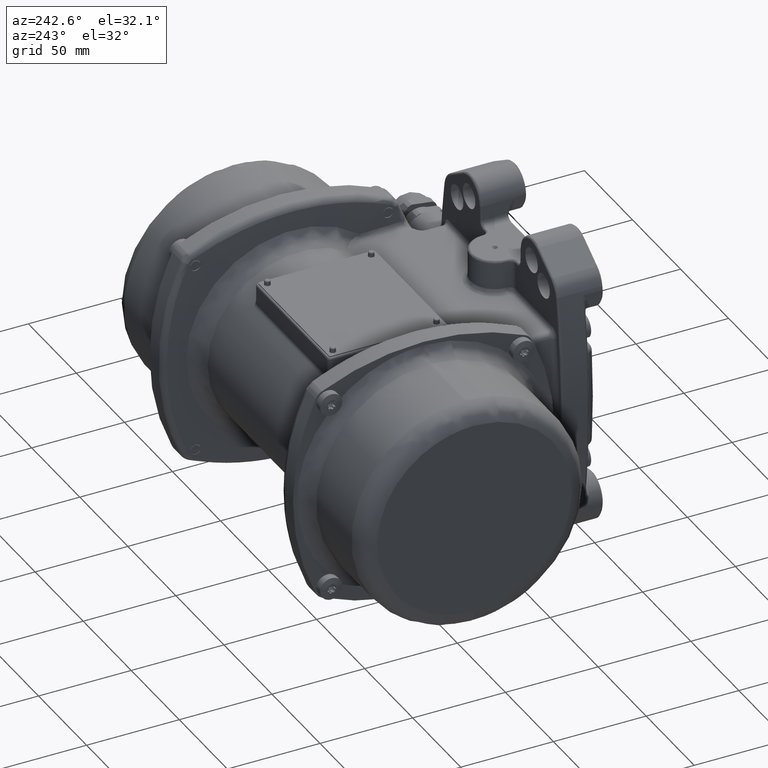
[diagram: clean part render]
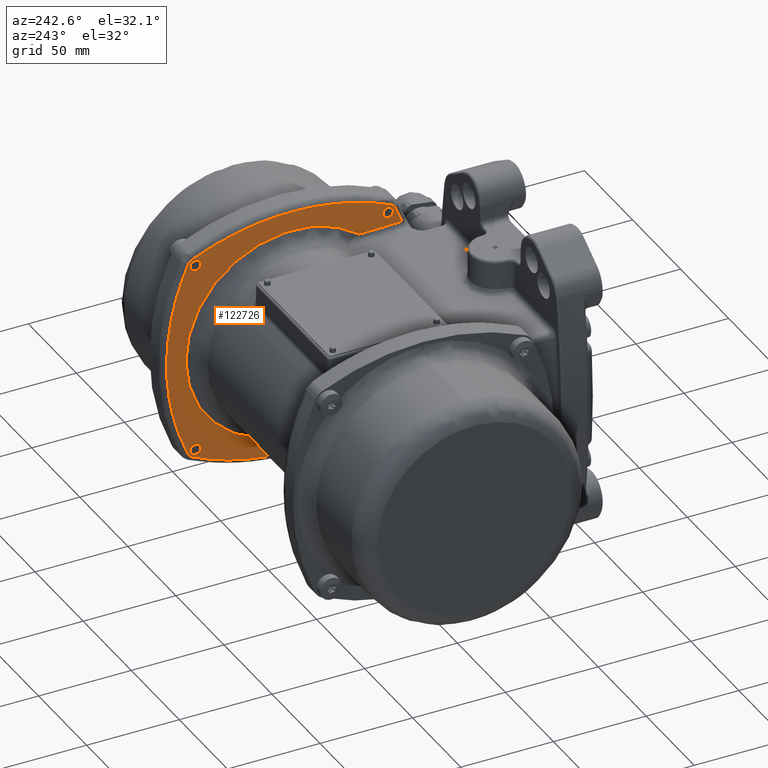
[diagram: same view with one face highlighted and labeled with its STEP entity id]
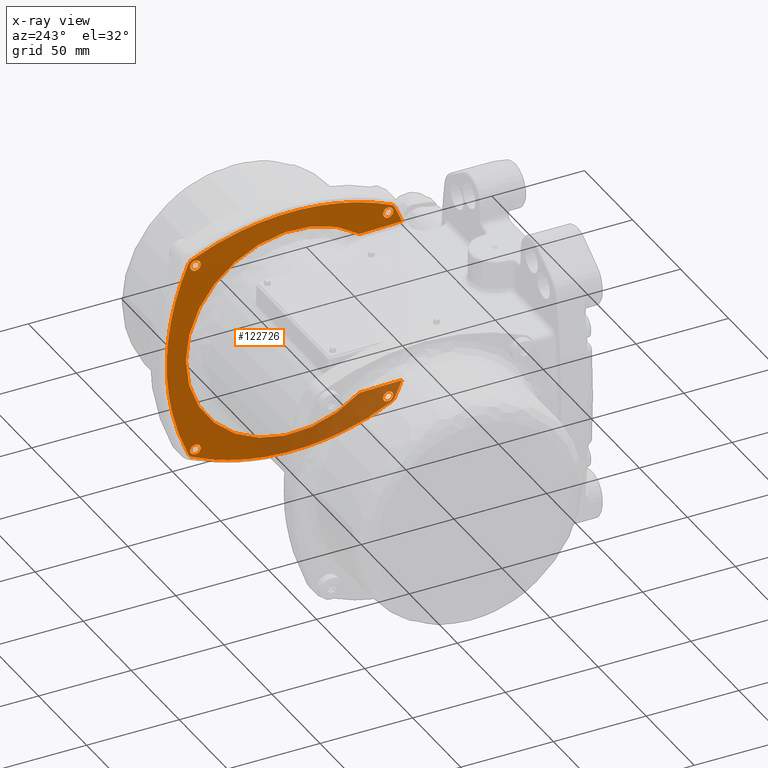
[diagram: x-ray of the same camera — body ghosted, the highlighted face saturated]
A machine part, auxiliary view. The second image highlights one B-rep face of the part: STEP entity #122726.
The next image is the same camera in x-ray: the body ghosted, the highlighted face saturated — about 21% of this face is hidden behind the body in this view.
In plain terms, the highlighted conical surface has half-angle 87 deg.
Its self-contained STEP definition (entity closure, byte-faithful):
#127 = CARTESIAN_POINT ( 'NONE',  ( 62.72421064457866900, 53.92352492619569700, -54.61664313845660200 ) ) ;
#304 = CARTESIAN_POINT ( 'NONE',  ( 62.87149335124848900, 160.5167922015824600, -54.20389198480150800 ) ) ;
#743 = CARTESIAN_POINT ( 'NONE',  ( 62.59499724397983300, 154.3310162452789300, 52.87319710719425800 ) ) ;
#854 = CARTESIAN_POINT ( 'NONE',  ( 62.79610098365136400, 158.2088214734859300, 54.47627046682741500 ) ) ;
#1242 = CARTESIAN_POINT ( 'NONE',  ( 62.65042139061441200, 154.8736084609047100, -53.81274111572628300 ) ) ;
#1585 = B_SPLINE_CURVE_WITH_KNOTS ( 'NONE', 3,
 ( #135212, #23168, #14042, #68871, #82627, #103216, #87196, #32355, #16303, #132980, #121522, #71117, #112342, #27781, #107740, #50655, #16396, #62139, #105595, #96396, #128520, #34690, #43895, #73569, #133076, #117026, #11894, #71214, #91880, #94145, #9562, #27883, #32460, #5088, #89540, #126126, #100984, #39309, #137669, #119281, #75852, #14140, #62241, #18840, #60002, #27980, #2861, #32562, #98836, #21112, #75954, #39416, #78201, #57657, #96498, #14239, #37128, #133175, #9663, #112540, #140129, #34785, #94248, #85134, #50853, #69061 ),
 .UNSPECIFIED., .T., .F.,
 ( 4, 2, 2, 2, 2, 2, 2, 2, 2, 2, 2, 2, 2, 2, 2, 2, 2, 2, 2, 2, 2, 2, 2, 2, 2, 2, 2, 2, 2, 2, 2, 2, 4 ),
 ( 0.0000000000000000000, 0.0005445419273937329400, 0.001089083854787465900, 0.001633625782181198800, 0.002178167709574931700, 0.002722709636968664700, 0.003267251564362397600, 0.003811793491756130600, 0.004356335419149863500, 0.004900877346543596400, 0.005445419273937329400, 0.005989961201331062300, 0.006534503128724795200, 0.007079045056118528200, 0.007623586983512261100, 0.008168128910905993200, 0.008712670838299727000, 0.009257212765693460800, 0.009801754693087192900, 0.01034629662048092500, 0.01089083854787465900, 0.01143538047526839300, 0.01197992240266212500, 0.01252446433005585700, 0.01306900625744959000, 0.01361354818484332400, 0.01415809011223705600, 0.01470263203963078800, 0.01524717396702452200, 0.01579171589441825600, 0.01633625782181198600, 0.01688079974920572000, 0.01742534167659945400 ),
 .UNSPECIFIED. ) ;
#1698 = CARTESIAN_POINT ( 'NONE',  ( 62.66946646355261000, 50.93001887384797000, -50.13065765125614300 ) ) ;
#1831 = CARTESIAN_POINT ( 'NONE',  ( 62.35246899438920600, 102.0953052065728300, 67.62503956538768100 ) ) ;
#2073 = ORIENTED_EDGE ( 'NONE', *, *, #96779, .T. ) ;
#2252 = CARTESIAN_POINT ( 'NONE',  ( 62.54213079393594700, 53.39577094147833200, -49.20642694551019500 ) ) ;
#2267 = CARTESIAN_POINT ( 'NONE',  ( 62.48909562476482200, 132.7167371773846600, -64.59674428346832500 ) ) ;
#2400 = CARTESIAN_POINT ( 'NONE',  ( 62.75525197837598800, 53.20989488085007900, -54.75869598042326200 ) ) ;
#2813 = CARTESIAN_POINT ( 'NONE',  ( 62.51575779323314900, 168.9925784777919100, 30.29829755475458000 ) ) ;
#2851 = VERTEX_POINT ( 'NONE', #105588 ) ;
#2861 = CARTESIAN_POINT ( 'NONE',  ( 62.53130014739220900, 55.72297113275256900, 51.25051065185846300 ) ) ;
#3106 = CARTESIAN_POINT ( 'NONE',  ( 62.76182489051331000, 156.9723484172110400, 54.75863778271600800 ) ) ;
#3270 = EDGE_CURVE ( 'NONE', #111841, #14446, #74821, .T. ) ;
#3363 = CARTESIAN_POINT ( 'NONE',  ( 62.55545592903230600, 53.02765158278920400, -49.18786000634899800 ) ) ;
#3379 = CARTESIAN_POINT ( 'NONE',  ( 62.51229379706321500, 155.2742178195575200, -49.75857299947803400 ) ) ;
#3576 = CARTESIAN_POINT ( 'NONE',  ( 62.80325935360778500, 159.0725943952425000, -53.81284913638613400 ) ) ;
#4079 = CARTESIAN_POINT ( 'NONE',  ( 62.39630509821842700, 89.14399466682857600, 66.66588772411657300 ) ) ;
#4178 = CARTESIAN_POINT ( 'NONE',  ( 62.43593833754666600, 126.7387676942970100, 65.78851497680987800 ) ) ;
#4503 = CARTESIAN_POINT ( 'NONE',  ( 62.47685049024200100, 78.54580713893918200, -64.87282604662117100 ) ) ;
#4888 = CARTESIAN_POINT ( 'NONE',  ( 62.86347865239088900, 160.7160904519850200, -53.77719982089610100 ) ) ;
#5088 = CARTESIAN_POINT ( 'NONE',  ( 62.54851632872166100, 53.20991523884588800, 49.18780739139553800 ) ) ;
#5143 = CARTESIAN_POINT ( 'NONE',  ( 62.38713467195984200, 171.8675326905421900, 14.14157401842504500 ) ) ;
#5330 = CARTESIAN_POINT ( 'NONE',  ( 62.78468735806546900, 157.6974077900629300, 54.66899877599569600 ) ) ;
#5687 = CARTESIAN_POINT ( 'NONE',  ( 62.54845476968688400, 156.7883570049130000, -49.18792110454030100 ) ) ;
#5786 = CARTESIAN_POINT ( 'NONE',  ( 61.94500196138839200, 65.21170592913682600, -44.88257694775440100 ) ) ;
#5794 = CARTESIAN_POINT ( 'NONE',  ( 62.69760720364435300, 155.5757128814540000, -54.38948975068144900 ) ) ;
#6041 = CARTESIAN_POINT ( 'NONE',  ( 62.22366573930822400, 57.67851827341475300, 44.89189331618428700 ) ) ;
#6387 = CARTESIAN_POINT ( 'NONE',  ( 62.35105480602274500, 104.4012368698916600, 67.65592128486918000 ) ) ;
#6977 = CARTESIAN_POINT ( 'NONE',  ( 62.86347865239088900, 158.7771998208965000, -55.71609045198440700 ) ) ;
#7050 = CARTESIAN_POINT ( 'NONE',  ( 61.82296026901550300, 68.92222669396740300, 44.87763145747879900 ) ) ;
#7379 = CARTESIAN_POINT ( 'NONE',  ( 62.40137547566971000, 171.5541160163728900, 16.71303934460509700 ) ) ;
#7484 = CARTESIAN_POINT ( 'NONE',  ( 62.38374816281023500, 171.9418748668861700, -13.46361574347331400 ) ) ;
#8517 = CARTESIAN_POINT ( 'NONE',  ( 62.64075356843169800, 51.33030830326322300, -49.75658037370989500 ) ) ;
#8747 = CARTESIAN_POINT ( 'NONE',  ( 62.37580951821649900, 116.7381262265830800, 67.11581942461131700 ) ) ;
#8905 = FACE_BOUND ( 'NONE', #63368, .T. ) ;
#9078 = CARTESIAN_POINT ( 'NONE',  ( 62.38860674636697500, 119.4273433952989800, -66.83519386827255500 ) ) ;
#9144 = CARTESIAN_POINT ( 'NONE',  ( 62.86347865239079600, 49.28390954801560000, -53.77719982089659800 ) ) ;
#9203 = CARTESIAN_POINT ( 'NONE',  ( 62.78473116653103900, 52.30092050035774100, -54.66854851764025400 ) ) ;
#9257 = CARTESIAN_POINT ( 'NONE',  ( 62.57012897574875900, 55.79394870589498400, -52.34015958801910500 ) ) ;
#9562 = CARTESIAN_POINT ( 'NONE',  ( 62.58641488133144300, 52.30119734157573000, 49.27786851337438600 ) ) ;
#9663 = CARTESIAN_POINT ( 'NONE',  ( 62.67902607678942000, 54.72711155668996200, 54.18686737966925200 ) ) ;
#9913 = CARTESIAN_POINT ( 'NONE',  ( 62.78459225350070500, 159.6699886578654500, 52.69376606948400600 ) ) ;
#10052 = CARTESIAN_POINT ( 'NONE',  ( 62.76182489051331000, 156.9723484172110100, 54.75863778271600100 ) ) ;
#10384 = CARTESIAN_POINT ( 'NONE',  ( 62.75526673993041300, 159.7585777863871200, -51.79063546625418000 ) ) ;
#11229 = ORIENTED_EDGE ( 'NONE', *, *, #60235, .T. ) ;
#11319 = CARTESIAN_POINT ( 'NONE',  ( 62.44508124115838400, 82.11909502081640300, -65.58487875619000800 ) ) ;
#11444 = CARTESIAN_POINT ( 'NONE',  ( 62.73258643425126700, 53.74672769467982600, -54.67009305549844100 ) ) ;
#11491 = CARTESIAN_POINT ( 'NONE',  ( 62.61289045599313900, 55.52927620141780800, -53.20964725671888100 ) ) ;
#11894 = CARTESIAN_POINT ( 'NONE',  ( 62.64100363931693500, 51.32653016892865600, 49.75952333812809100 ) ) ;
#12048 = CARTESIAN_POINT ( 'NONE',  ( 62.58219767427936400, 167.4798246878917500, -36.19553248569631200 ) ) ;
#12089 = CARTESIAN_POINT ( 'NONE',  ( 62.86347865239079600, 158.7771998208959900, 55.71609045198470500 ) ) ;
#12110 = B_SPLINE_CURVE_WITH_KNOTS ( 'NONE', 3,
 ( #97808, #116112, #70297, #120600, #132138, #58886, #100051, #20081, #109283, #127480, #86372, #54397, #79511, #13201, #36097, #139013, #95478, #129846, #74907, #134489, #4079, #31514, #113766, #52080, #106900, #125201, #136728, #63460, #93183, #1831, #111515, #38350, #6387, #24683, #43069, #116210, #70397, #22439, #111613, #8747, #49911, #127664, #40751, #84122, #65886, #4178, #38455, #120691, #139104, #88696, #109379, #47672, #97907, #104732, #102398, #52172, #118445, #56706, #136819, #15554 ),
 .UNSPECIFIED., .F., .F.,
 ( 4, 2, 2, 2, 1, 1, 1, 1, 2, 2, 2, 2, 1, 1, 2, 2, 2, 2, 1, 2, 2, 2, 2, 1, 2, 2, 2, 2, 1, 1, 1, 1, 2, 2, 2, 4 ),
 ( 0.0000000000000000000, 0.1249999999999817900, 0.1874999999999727700, 0.2187499999999681400, 0.2343749999999658600, 0.2421874999999646700, 0.2460937499999638900, 0.2480468749999634500, 0.2490234374999630300, 0.2499999999999626100, 0.3124999999999585300, 0.3437499999999564800, 0.3593749999999552600, 0.3671874999999546500, 0.3710937499999543700, 0.3749999999999540900, 0.4374999999999468200, 0.4687499999999432100, 0.4843749999999413800, 0.4921874999999406600, 0.4999999999999399400, 0.5624999999999346100, 0.5937499999999319400, 0.6093749999999303900, 0.6171874999999296100, 0.6249999999999288300, 0.6874999999999227300, 0.7187499999999191800, 0.7343749999999176200, 0.7421874999999169600, 0.7460937499999166200, 0.7480468749999168400, 0.7490234374999168400, 0.7499999999999169600, 0.8749999999999584800, 1.000000000000000000 ),
 .UNSPECIFIED. ) ;
#12727 = CARTESIAN_POINT ( 'NONE',  ( 62.58633628215973500, 157.6971624098910400, -49.27742698335277500 ) ) ;
#12868 = CARTESIAN_POINT ( 'NONE',  ( 62.08963242445609900, 61.26125196706350100, 44.88779731575805700 ) ) ;
#13174 = CARTESIAN_POINT ( 'NONE',  ( 62.67888724302492400, 50.81469539234276300, -50.27067817504175200 ) ) ;
#13201 = CARTESIAN_POINT ( 'NONE',  ( 62.48842404980710800, 77.35118620193645700, 64.61190797195395400 ) ) ;
#13290 = DIRECTION ( 'NONE',  ( 1.000000000000000000, -1.224646799147352000E-016, 1.019723305085167900E-032 ) ) ;
#13654 = CARTESIAN_POINT ( 'NONE',  ( 62.41059790491402700, 86.68623882460421700, -66.35122969191891700 ) ) ;
#13730 = CARTESIAN_POINT ( 'NONE',  ( 62.56259034716026000, 55.81183530462748600, -52.15948533221445200 ) ) ;
#14042 = CARTESIAN_POINT ( 'NONE',  ( 62.77432877827806800, 52.66268498898733700, 54.74069849408287800 ) ) ;
#14140 = CARTESIAN_POINT ( 'NONE',  ( 62.51131525634073700, 55.12498184834186100, 50.13237735334244100 ) ) ;
#14195 = CARTESIAN_POINT ( 'NONE',  ( 62.49010479945044900, 169.5739546437018500, 27.81862281471756800 ) ) ;
#14239 = CARTESIAN_POINT ( 'NONE',  ( 62.64082934509221400, 55.24251179259263700, 53.67082162400989600 ) ) ;
#14446 = VERTEX_POINT ( 'NONE', #20672 ) ;
#14492 = CARTESIAN_POINT ( 'NONE',  ( 62.57008059781157500, 157.3389273403200000, 49.20601272930669300 ) ) ;
#14502 = CARTESIAN_POINT ( 'NONE',  ( 62.71010040536569400, 45.54290930951279400, 44.90537222298419800 ) ) ;
#14592 = ORIENTED_EDGE ( 'NONE', *, *, #25050, .T. ) ;
#14770 = CARTESIAN_POINT ( 'NONE',  ( 62.54223756881597000, 156.6074185554730900, -49.20603275690209000 ) ) ;
#14971 = CARTESIAN_POINT ( 'NONE',  ( 62.66967985731082500, 159.0727788907044800, -50.13362897647858300 ) ) ;
#14998 = EDGE_LOOP ( 'NONE', ( #21893 ) ) ;
#15554 = CARTESIAN_POINT ( 'NONE',  ( 62.86347865239079600, 158.7771998208959900, 55.71609045198470500 ) ) ;
#15885 = CARTESIAN_POINT ( 'NONE',  ( 62.51610337245290300, 54.42655774710488000, -49.55833066232848700 ) ) ;
#15901 = CARTESIAN_POINT ( 'NONE',  ( 62.37415032095712800, 116.5459376011807700, -67.15257162829746600 ) ) ;
#16303 = CARTESIAN_POINT ( 'NONE',  ( 62.80326598972840900, 51.18564590233909000, 54.07127529462340500 ) ) ;
#16396 = CARTESIAN_POINT ( 'NONE',  ( 62.76843753263845800, 50.24141407239437700, 52.15568642118713400 ) ) ;
#16635 = CARTESIAN_POINT ( 'NONE',  ( 62.74798731862578200, 156.6074410095086800, 54.74046851686475900 ) ) ;
#16732 = CARTESIAN_POINT ( 'NONE',  ( 62.64084353906346100, 158.6710611379374400, 49.75762828256061700 ) ) ;
#17117 = CARTESIAN_POINT ( 'NONE',  ( 62.52660101552806500, 156.0744754388956000, -49.33053986009182500 ) ) ;
#17318 = CARTESIAN_POINT ( 'NONE',  ( 62.64091474612374100, 158.6721185922791300, -49.75848603532035200 ) ) ;
#17939 = VERTEX_POINT ( 'NONE', #134685 ) ;
#18027 = ORIENTED_EDGE ( 'NONE', *, *, #3270, .T. ) ;
#18334 = CARTESIAN_POINT ( 'NONE',  ( 62.54238166753521700, 55.79458993540730200, -51.61181244352834300 ) ) ;
#18470 = CARTESIAN_POINT ( 'NONE',  ( 62.64114291243233600, 55.23892910182245700, -53.67565904248100100 ) ) ;
#18673 = CARTESIAN_POINT ( 'NONE',  ( 62.62220358160597300, 55.44260798274682900, -53.37166263228704100 ) ) ;
#18802 = CARTESIAN_POINT ( 'NONE',  ( 62.49247222611930400, 169.5204698651814700, 28.05636011776580200 ) ) ;
#18840 = CARTESIAN_POINT ( 'NONE',  ( 62.51616204233868500, 55.44406977570604800, 50.57736748829582000 ) ) ;
#18989 = CARTESIAN_POINT ( 'NONE',  ( 62.54868213085745800, 154.1876723862606900, 51.79457183852235900 ) ) ;
#19368 = CARTESIAN_POINT ( 'NONE',  ( 62.55545592903230600, 156.9723484172109800, -49.18786000634829500 ) ) ;
#20054 = CARTESIAN_POINT ( 'NONE',  ( 62.72396566064704600, 50.38512484491019400, -51.07152068603094400 ) ) ;
#20081 = CARTESIAN_POINT ( 'NONE',  ( 62.51575779335635700, 74.70170243689415200, 63.99257847645177600 ) ) ;
#20374 = B_SPLINE_CURVE_WITH_KNOTS ( 'NONE', 3,
 ( #9144, #59478, #95975, #45726 ),
 .UNSPECIFIED., .F., .F.,
 ( 4, 4 ),
 ( 0.0000000000000000000, 1.000000000000000000 ),
 .UNSPECIFIED. ) ;
#20520 = CARTESIAN_POINT ( 'NONE',  ( 62.35464402325124000, 109.6331990648617400, -67.57760446878404500 ) ) ;
#20672 = CARTESIAN_POINT ( 'NONE',  ( 62.86347865239079600, 51.22280017910350100, 55.71609045198440700 ) ) ;
#20709 = CARTESIAN_POINT ( 'NONE',  ( 62.59507958908574900, 55.66842800853136500, -52.87482738380383300 ) ) ;
#20747 = ORIENTED_EDGE ( 'NONE', *, *, #68098, .T. ) ;
#21066 = CARTESIAN_POINT ( 'NONE',  ( 62.48810728627575600, 169.6190593226918700, 27.61672199795109300 ) ) ;
#21112 = CARTESIAN_POINT ( 'NONE',  ( 62.56237116196636100, 55.81219506236853100, 52.15407654134122600 ) ) ;
#21643 = VERTEX_POINT ( 'NONE', #119894 ) ;
#21737 = CARTESIAN_POINT ( 'NONE',  ( 62.61278139604885200, 154.4697080568277000, -53.20775087410773100 ) ) ;
#21778 = VERTEX_POINT ( 'NONE', #85671 ) ;
#21839 = CARTESIAN_POINT ( 'NONE',  ( 62.30331095657000900, 55.60546775575212300, -44.89442199162996900 ) ) ;
#21847 = CARTESIAN_POINT ( 'NONE',  ( 62.74793599889284900, 159.7403375093479400, -51.60615297048873600 ) ) ;
#21893 = ORIENTED_EDGE ( 'NONE', *, *, #74065, .T. ) ;
#22069 = EDGE_CURVE ( 'NONE', #41704, #113745, #39091, .T. ) ;
#22439 = CARTESIAN_POINT ( 'NONE',  ( 62.36592439580817200, 114.1555517135755900, 67.33177332006225400 ) ) ;
#22754 = CARTESIAN_POINT ( 'NONE',  ( 62.52658281931434900, 53.92622399476687200, -49.33076490980583600 ) ) ;
#22769 = CARTESIAN_POINT ( 'NONE',  ( 62.48164992942241000, 78.04502417127098100, -64.76471590557298400 ) ) ;
#23168 = CARTESIAN_POINT ( 'NONE',  ( 62.76846566163286700, 52.84364651539629400, 54.75869573584797900 ) ) ;
#23170 = CARTESIAN_POINT ( 'NONE',  ( 62.86347865239088900, 158.7771998208965000, -55.71609045198440700 ) ) ;
#23424 = CARTESIAN_POINT ( 'NONE',  ( 62.35100747100109700, 172.6569566405255500, 0.3090496489384791900 ) ) ;
#23518 = CARTESIAN_POINT ( 'NONE',  ( 62.51911123941359000, 154.4682810160308600, 50.74167746833195700 ) ) ;
#23952 = CARTESIAN_POINT ( 'NONE',  ( 62.86347865239079600, 51.22280017910389900, -55.71609045198479700 ) ) ;
#24089 = CARTESIAN_POINT ( 'NONE',  ( 62.72417338238197000, 156.0757073508489200, -54.61638759743162600 ) ) ;
#24646 = EDGE_CURVE ( 'NONE', #133265, #97102, #36359, .T. ) ;
#24657 = CARTESIAN_POINT ( 'NONE',  ( 62.69755278572795700, 50.61097704876264900, -50.57469022287408200 ) ) ;
#24683 = CARTESIAN_POINT ( 'NONE',  ( 62.35100747100764100, 104.6909503520923900, 67.65695664065087600 ) ) ;
#24796 = ORIENTED_EDGE ( 'NONE', *, *, #22069, .T. ) ;
#25031 = CARTESIAN_POINT ( 'NONE',  ( 62.44536145033335100, 127.9994075259472300, -65.57916874463281000 ) ) ;
#25050 = EDGE_CURVE ( 'NONE', #17939, #81104, #113613, .T. ) ;
#25440 = CARTESIAN_POINT ( 'NONE',  ( 62.65063326773476100, 55.12362034764234400, -53.81568495727483300 ) ) ;
#25622 = B_SPLINE_CURVE_WITH_KNOTS ( 'NONE', 3,
 ( #51633, #69839, #131687, #95033 ),
 .UNSPECIFIED., .F., .F.,
 ( 4, 4 ),
 ( 0.0000000000000000000, 1.000000000000000000 ),
 .UNSPECIFIED. ) ;
#25677 = CARTESIAN_POINT ( 'NONE',  ( 62.58577820122516800, 167.3870484524357500, 36.28250204593175000 ) ) ;
#25966 = CARTESIAN_POINT ( 'NONE',  ( 62.51228637843853200, 155.2731823023663900, 49.75941603634983300 ) ) ;
#26242 = CARTESIAN_POINT ( 'NONE',  ( 62.51228865424424400, 154.7586088488088200, -50.27404820444751700 ) ) ;
#26437 = CARTESIAN_POINT ( 'NONE',  ( 62.61279343396389400, 158.2079729860623400, -49.46980655922703100 ) ) ;
#26904 = CARTESIAN_POINT ( 'NONE',  ( 62.70666046531325600, 50.52430508029241500, -50.73668948327394900 ) ) ;
#27273 = CARTESIAN_POINT ( 'NONE',  ( 62.61461424316336600, 143.4619210480671300, -61.71731176571547900 ) ) ;
#27376 = CARTESIAN_POINT ( 'NONE',  ( 62.39648865364112100, 88.96766378977093800, -66.66222889589428700 ) ) ;
#27700 = ORIENTED_EDGE ( 'NONE', *, *, #24646, .T. ) ;
#27757 = CARTESIAN_POINT ( 'NONE',  ( 62.86347865239079600, 49.28390954801520300, 53.77719982089610100 ) ) ;
#27781 = CARTESIAN_POINT ( 'NONE',  ( 62.78903193177652800, 50.38398424285443900, 52.87162064999299100 ) ) ;
#27883 = CARTESIAN_POINT ( 'NONE',  ( 62.57021778564786300, 52.65785256640982200, 49.20640930481992800 ) ) ;
#27980 = CARTESIAN_POINT ( 'NONE',  ( 62.52661443142391600, 55.66951998042814200, 51.07488552362360700 ) ) ;
#28130 = EDGE_CURVE ( 'NONE', #2851, #2851, #1585, .T. ) ;
#28227 = CARTESIAN_POINT ( 'NONE',  ( 62.79602760656197100, 159.4782175215216900, 53.20482285221054800 ) ) ;
#28594 = CARTESIAN_POINT ( 'NONE',  ( 62.62422771457722300, 47.59516805293198900, -44.90330812736790000 ) ) ;
#28647 = CARTESIAN_POINT ( 'NONE',  ( 61.82296026901550300, 68.92222669396740300, -44.87763145747879900 ) ) ;
#29615 = CARTESIAN_POINT ( 'NONE',  ( 62.51130054404384100, 54.86929355292528500, -49.87630709463029900 ) ) ;
#29627 = CARTESIAN_POINT ( 'NONE',  ( 62.46748001727646500, 79.54700341300164700, -65.08353406568942000 ) ) ;
#30266 = CARTESIAN_POINT ( 'NONE',  ( 62.48909562476341500, 169.5967442835066100, 27.71673717722618200 ) ) ;
#30363 = CARTESIAN_POINT ( 'NONE',  ( 62.48407819968547000, 169.7099692124200800, -27.20541515980820800 ) ) ;
#30554 = CARTESIAN_POINT ( 'NONE',  ( 62.79879976556647100, 158.3715742933096400, 54.38902637804087400 ) ) ;
#30922 = CARTESIAN_POINT ( 'NONE',  ( 62.59487056553020100, 154.3301055594486700, -52.87074147770456300 ) ) ;
#30974 = CARTESIAN_POINT ( 'NONE',  ( 62.38186611711588400, 53.53982388313333000, 44.89682572199335900 ) ) ;
#31514 = CARTESIAN_POINT ( 'NONE',  ( 62.39084756573122100, 90.14402244001577500, 66.78594947217369800 ) ) ;
#31598 = DIRECTION ( 'NONE',  ( -2.410120096507463600E-016, -1.000000000000000000, 8.326672684688670400E-017 ) ) ;
#31837 = CARTESIAN_POINT ( 'NONE',  ( 62.51232546567292300, 55.24394107303852800, -50.27755419903057500 ) ) ;
#31888 = CARTESIAN_POINT ( 'NONE',  ( 62.80325213330513600, 50.92454830813594000, -53.80978961768543200 ) ) ;
#32109 = B_SPLINE_CURVE_WITH_KNOTS ( 'NONE', 3,
 ( #117278, #121764, #16635, #69212, #112697, #73819, #85186, #39562, #119527, #51012, #105832, #137916, #96638, #743, #66967, #34928, #80693, #18989, #55542, #135664, #48746, #23518, #103482, #41830, #41928, #85383, #25966, #44252, #96739, #71552, #94494, #105931, #124220, #138014, #14492, #89882, #115048, #87633, #51106, #16732, #67071, #133418, #119630, #57910, #76210, #35025, #131158, #32812, #78432, #55654, #53331, #9913, #62488, #28227, #112801, #108188, #46486, #69308, #126490, #30554, #854, #128862, #5330, #64734, #135761, #3106 ),
 .UNSPECIFIED., .T., .F.,
 ( 4, 2, 2, 2, 2, 2, 2, 2, 2, 2, 2, 2, 2, 2, 2, 2, 2, 2, 2, 2, 2, 2, 2, 2, 2, 2, 2, 2, 2, 2, 2, 2, 4 ),
 ( 0.0000000000000000000, 0.0005445315540630333100, 0.001089063108126066600, 0.001633594662189099900, 0.002178126216252133200, 0.002722657770315166500, 0.003267189324378199900, 0.003811720878441233200, 0.004356252432504266500, 0.004900783986567299800, 0.005445315540630333100, 0.005989847094693366400, 0.006534378648756399700, 0.007078910202819433000, 0.007623441756882466300, 0.008167973310945500500, 0.008712504865008532900, 0.009257036419071565400, 0.009801567973134599600, 0.01034609952719763400, 0.01089063108126066600, 0.01143516263532369900, 0.01197969418938673300, 0.01252422574344976700, 0.01306875729751279900, 0.01361328885157583200, 0.01415782040563886600, 0.01470235195970190000, 0.01524688351376493300, 0.01579141506782796500, 0.01633594662189100100, 0.01688047817595403300, 0.01742500973001706600 ),
 .UNSPECIFIED. ) ;
#32355 = CARTESIAN_POINT ( 'NONE',  ( 62.80234707783510800, 51.32909728373660100, 54.18898191930470200 ) ) ;
#32460 = CARTESIAN_POINT ( 'NONE',  ( 62.56252653402278000, 52.84194613957148300, 49.18791254160068900 ) ) ;
#32517 = CARTESIAN_POINT ( 'NONE',  ( 62.38641686681064200, 171.8832958220748100, 14.00014913082557700 ) ) ;
#32562 = CARTESIAN_POINT ( 'NONE',  ( 62.54232072199809500, 55.79443295549185000, 51.61005897883395500 ) ) ;
#32696 = ORIENTED_EDGE ( 'NONE', *, *, #60425, .T. ) ;
#32812 = CARTESIAN_POINT ( 'NONE',  ( 62.74801198254567700, 159.7406560203300800, 51.60793025007053800 ) ) ;
#33080 = CARTESIAN_POINT ( 'NONE',  ( 62.53132970981784000, 156.2514023098591700, -49.27691102063995000 ) ) ;
#33183 = CARTESIAN_POINT ( 'NONE',  ( 62.78904426070404600, 157.8720220966359600, -54.61595795368759800 ) ) ;
#33438 = CARTESIAN_POINT ( 'NONE',  ( 61.82296026901550300, 68.92222669396740300, 44.87763145747879900 ) ) ;
#33524 = CARTESIAN_POINT ( 'NONE',  ( 62.86347865239079600, 49.28390954801520300, 53.77719982089610100 ) ) ;
#34205 = CARTESIAN_POINT ( 'NONE',  ( 62.39084756568698300, 119.8559775537529200, -66.78594947268243200 ) ) ;
#34690 = CARTESIAN_POINT ( 'NONE',  ( 62.70685320015950700, 50.52251255204388500, 50.74016189812702700 ) ) ;
#34739 = CARTESIAN_POINT ( 'NONE',  ( 62.44536145025141100, 170.5791687457824300, 22.99940751794221700 ) ) ;
#34785 = CARTESIAN_POINT ( 'NONE',  ( 62.72409361685933500, 53.92592773679206900, 54.61583269125544900 ) ) ;
#34834 = CARTESIAN_POINT ( 'NONE',  ( 62.35165163449178000, 172.6428787651254900, 2.040275262482815800 ) ) ;
#34928 = CARTESIAN_POINT ( 'NONE',  ( 62.57005566837264600, 154.2058264798497500, 52.33845122631663600 ) ) ;
#35025 = CARTESIAN_POINT ( 'NONE',  ( 62.72404497672400200, 159.6154288973211200, 51.07314448555615600 ) ) ;
#35405 = CARTESIAN_POINT ( 'NONE',  ( 62.51132136498461000, 154.8738934514019800, -50.13366064730485800 ) ) ;
#36097 = CARTESIAN_POINT ( 'NONE',  ( 62.48810728627319100, 77.38327800236788800, 64.61905932277534200 ) ) ;
#36359 = CIRCLE ( 'NONE', #138764, 57.58131235005650000 ) ;
#36617 = CARTESIAN_POINT ( 'NONE',  ( 62.52675744188128700, 55.67153124686493700, -51.08062407100582900 ) ) ;
#37086 = CARTESIAN_POINT ( 'NONE',  ( 62.38860674635389400, 171.8351938682909300, 14.42734339402408500 ) ) ;
#37128 = CARTESIAN_POINT ( 'NONE',  ( 62.65033093114281800, 55.12752807865615500, 53.81144106015189300 ) ) ;
#37636 = CARTESIAN_POINT ( 'NONE',  ( 62.58633925198077500, 154.2774366743496400, -52.69723106188868700 ) ) ;
#37735 = CARTESIAN_POINT ( 'NONE',  ( 62.24182345053070300, 57.20274738130154200, -44.89245599032877700 ) ) ;
#37743 = CARTESIAN_POINT ( 'NONE',  ( 62.80235862379220200, 158.6722855385547500, -54.18792246530025400 ) ) ;
#37853 = CARTESIAN_POINT ( 'NONE',  ( 62.57014473678124500, 157.3404475862082600, -49.20618267749107100 ) ) ;
#38350 = CARTESIAN_POINT ( 'NONE',  ( 62.35123950651464500, 103.8245646602192800, 67.65188437591996300 ) ) ;
#38455 = CARTESIAN_POINT ( 'NONE',  ( 62.44508124108897800, 127.8809049694803400, 65.58487875820345900 ) ) ;
#38641 = FACE_BOUND ( 'NONE', #72118, .T. ) ;
#38813 = CARTESIAN_POINT ( 'NONE',  ( 62.58219767410969300, 68.80446752115351200, -62.47982468811233800 ) ) ;
#39091 = B_SPLINE_CURVE_WITH_KNOTS ( 'NONE', 3,
 ( #100829, #61983, #43737, #45993, #132923, #73406 ),
 .UNSPECIFIED., .F., .F.,
 ( 4, 2, 4 ),
 ( 0.0000000000000000000, 0.5000000000000000000, 1.000000000000000000 ),
 .UNSPECIFIED. ) ;
#39309 = CARTESIAN_POINT ( 'NONE',  ( 62.51905119805077500, 54.26137436331601500, 49.46977095827408300 ) ) ;
#39370 = CARTESIAN_POINT ( 'NONE',  ( 62.41984670479990200, 171.1458925924578100, 19.56983867495650000 ) ) ;
#39416 = CARTESIAN_POINT ( 'NONE',  ( 62.58625992566865600, 55.72300816297302400, 52.69557490191781600 ) ) ;
#39562 = CARTESIAN_POINT ( 'NONE',  ( 62.67918324440595500, 155.2752743563090100, 54.18874491290631600 ) ) ;
#40751 = CARTESIAN_POINT ( 'NONE',  ( 62.38374816281472600, 118.4636157446525400, 66.94187486673138200 ) ) ;
#41314 = CARTESIAN_POINT ( 'NONE',  ( 62.69781693303070800, 54.42068930793718800, -54.39160916717178700 ) ) ;
#41704 = VERTEX_POINT ( 'NONE', #23952 ) ;
#41736 = CARTESIAN_POINT ( 'NONE',  ( 62.78106334959290500, 162.7650110671145300, 49.39000005340396600 ) ) ;
#41830 = CARTESIAN_POINT ( 'NONE',  ( 62.51231319411915200, 154.7570993505132700, 50.27619517429189200 ) ) ;
#41928 = CARTESIAN_POINT ( 'NONE',  ( 62.51132277781300000, 154.8721900060817500, 50.13540077272940500 ) ) ;
#42300 = CARTESIAN_POINT ( 'NONE',  ( 62.51616056129455500, 155.5770751276662100, -49.55618421051436000 ) ) ;
#42392 = CARTESIAN_POINT ( 'NONE',  ( 62.24133167973592200, 57.21560689636677200, -44.89244057954950100 ) ) ;
#42452 = CARTESIAN_POINT ( 'NONE',  ( 62.23827704508999400, 57.29552195010347000, 44.89234529893106900 ) ) ;
#43039 = CARTESIAN_POINT ( 'NONE',  ( 62.76825029389016200, 50.24105926582975500, -52.15013282380115800 ) ) ;
#43069 = CARTESIAN_POINT ( 'NONE',  ( 62.35098687723465400, 107.2751787224710300, 67.65740068362426000 ) ) ;
#43208 = CARTESIAN_POINT ( 'NONE',  ( 62.49247222612427800, 133.0563601183142700, -64.52046986504686300 ) ) ;
#43737 = CARTESIAN_POINT ( 'NONE',  ( 62.87549672655382000, 50.41387401609785000, -55.24864752065396800 ) ) ;
#43895 = CARTESIAN_POINT ( 'NONE',  ( 62.69769299179148400, 50.60965133598652000, 50.57719313641714400 ) ) ;
#44058 = CARTESIAN_POINT ( 'NONE',  ( 62.46748001726535200, 170.0835340647797700, -25.45299658872146900 ) ) ;
#44252 = CARTESIAN_POINT ( 'NONE',  ( 62.51612735802437700, 155.5749242355960000, 49.55747212407414500 ) ) ;
#44537 = CARTESIAN_POINT ( 'NONE',  ( 62.53134756721637200, 154.2765778481899000, -51.25219926363019600 ) ) ;
#44837 = VERTEX_POINT ( 'NONE', #45226 ) ;
#45226 = CARTESIAN_POINT ( 'NONE',  ( 62.86347865239088900, 160.7160904519850200, -53.77719982089610100 ) ) ;
#45664 = CARTESIAN_POINT ( 'NONE',  ( 62.35098687721357200, 102.7248212785759400, -67.65740068322196500 ) ) ;
#45726 = CARTESIAN_POINT ( 'NONE',  ( 62.71010040616670300, 45.54290927467960200, -44.90537223635804800 ) ) ;
#45993 = CARTESIAN_POINT ( 'NONE',  ( 62.87548093673603200, 49.74952033553817900, -54.58384285457799500 ) ) ;
#46202 = CARTESIAN_POINT ( 'NONE',  ( 62.38235726768861900, 171.9723792986012000, -13.17426781632145900 ) ) ;
#46486 = CARTESIAN_POINT ( 'NONE',  ( 62.80325805980588400, 159.0743120121684600, 53.81109528340058300 ) ) ;
#47310 = ORIENTED_EDGE ( 'NONE', *, *, #98332, .T. ) ;
#47433 = CARTESIAN_POINT ( 'NONE',  ( 62.74794210326494000, 50.25956860901017400, -51.60622458326109600 ) ) ;
#47672 = CARTESIAN_POINT ( 'NONE',  ( 62.48407819968160500, 132.2054151588116300, 64.70996921275957400 ) ) ;
#47913 = CARTESIAN_POINT ( 'NONE',  ( 62.49010479945294300, 132.8186228149940900, -64.57395464363487700 ) ) ;
#48561 = CARTESIAN_POINT ( 'NONE',  ( 62.46516233929843800, 170.1369949416072100, 25.28770574770748100 ) ) ;
#48637 = EDGE_CURVE ( 'NONE', #21778, #133265, #79715, .T. ) ;
#48746 = CARTESIAN_POINT ( 'NONE',  ( 62.52671613168686800, 154.3290170191154100, 51.07899898284395600 ) ) ;
#49234 = CARTESIAN_POINT ( 'NONE',  ( 62.66966718657487700, 155.1334470037471600, -54.07261790646298700 ) ) ;
#49696 = CARTESIAN_POINT ( 'NONE',  ( 62.59482826770537400, 52.13009291412080900, -49.32981686968349100 ) ) ;
#49911 = CARTESIAN_POINT ( 'NONE',  ( 62.37968462348035100, 117.5997264746186600, 67.03095387520518500 ) ) ;
#50165 = CARTESIAN_POINT ( 'NONE',  ( 62.70854533448816400, 150.0101120110577400, -59.50676082260512300 ) ) ;
#50655 = CARTESIAN_POINT ( 'NONE',  ( 62.77430501663930300, 50.25906650757183800, 52.33641760547989500 ) ) ;
#50805 = CARTESIAN_POINT ( 'NONE',  ( 62.35105480600993400, 172.6559212846629500, 0.5987631245903447500 ) ) ;
#50853 = CARTESIAN_POINT ( 'NONE',  ( 62.75518411939395900, 53.21165665017989700, 54.75857982958481800 ) ) ;
#51012 = CARTESIAN_POINT ( 'NONE',  ( 62.65054299688931400, 154.8752430526803000, 53.81438986494888600 ) ) ;
#51106 = CARTESIAN_POINT ( 'NONE',  ( 62.62202010425912800, 158.3685048817541200, 49.55564771639559800 ) ) ;
#51474 = CARTESIAN_POINT ( 'NONE',  ( 62.24292711435700200, 57.17389261449305600, -44.89249060383006900 ) ) ;
#51480 = CARTESIAN_POINT ( 'NONE',  ( 62.76852390108232500, 157.1580864787185000, -54.75857992567845400 ) ) ;
#51633 = CARTESIAN_POINT ( 'NONE',  ( 62.71010040536569400, 45.54290930951279400, 44.90537222298419800 ) ) ;
#51739 = CARTESIAN_POINT ( 'NONE',  ( 62.17320739394116200, 59.01100363286371200, 44.89036324021390800 ) ) ;
#51821 = CARTESIAN_POINT ( 'NONE',  ( 62.87549672656067700, 49.75135247898441500, 54.58612598372500500 ) ) ;
#52080 = CARTESIAN_POINT ( 'NONE',  ( 62.38713467197980100, 90.85842597905299600, 66.86753269040127600 ) ) ;
#52172 = CARTESIAN_POINT ( 'NONE',  ( 62.52936510895600000, 136.8236524151562600, 63.68805138189048900 ) ) ;
#52497 = CARTESIAN_POINT ( 'NONE',  ( 62.48582423467282600, 77.61567989365346400, -64.67058392417178000 ) ) ;
#52542 = CARTESIAN_POINT ( 'NONE',  ( 62.78454856743659500, 50.32956712841697600, -52.69210385920477100 ) ) ;
#52625 = CARTESIAN_POINT ( 'NONE',  ( 62.78906160544596600, 52.12726395725142900, -54.61572804361199500 ) ) ;
#52674 = CARTESIAN_POINT ( 'NONE',  ( 62.58645034090687200, 55.72200873939182500, -52.69961564041957300 ) ) ;
#52888 = CARTESIAN_POINT ( 'NONE',  ( 62.87548093673950000, 159.5838428547596100, -55.25047966437281800 ) ) ;
#53331 = CARTESIAN_POINT ( 'NONE',  ( 62.77430057794471500, 159.7408680324413100, 52.33636066064883600 ) ) ;
#53803 = CARTESIAN_POINT ( 'NONE',  ( 62.08425536766996100, 61.32404016518854900, -44.88752345868690000 ) ) ;
#53811 = CARTESIAN_POINT ( 'NONE',  ( 62.76837998135144400, 159.7586977517002300, -52.15397658822814700 ) ) ;
#54397 = CARTESIAN_POINT ( 'NONE',  ( 62.49010479946230800, 77.18137718447778200, 64.57395464360267600 ) ) ;
#54547 = CARTESIAN_POINT ( 'NONE',  ( 62.78889735509886100, 50.38195691381983500, -52.86583679072756300 ) ) ;
#54727 = CARTESIAN_POINT ( 'NONE',  ( 62.48810728627489700, 132.6167219978679300, -64.61905932270967400 ) ) ;
#55362 = CARTESIAN_POINT ( 'NONE',  ( 62.35246899433630600, 172.6250395653329100, 2.904694770618604600 ) ) ;
#55456 = CARTESIAN_POINT ( 'NONE',  ( 62.39648865362657700, 171.6622288951247700, -16.03233621259393600 ) ) ;
#55542 = CARTESIAN_POINT ( 'NONE',  ( 62.54232452651170600, 154.2056361866771100, 51.61009059548536700 ) ) ;
#55654 = CARTESIAN_POINT ( 'NONE',  ( 62.76830848550567100, 159.7588310458345400, 52.15185822672266600 ) ) ;
#56065 = CARTESIAN_POINT ( 'NONE',  ( 62.71010040536569400, 45.54290930951279400, 44.90537222298419800 ) ) ;
#56285 = CARTESIAN_POINT ( 'NONE',  ( 62.56245715662464600, 52.84365837695192200, -49.18779890756139400 ) ) ;
#56706 = CARTESIAN_POINT ( 'NONE',  ( 62.70784872350677800, 149.9680504185707300, 59.52348501588734600 ) ) ;
#56718 = ORIENTED_EDGE ( 'NONE', *, *, #28130, .T. ) ;
#56982 = CARTESIAN_POINT ( 'NONE',  ( 62.80232900644603000, 50.80954491335727900, -53.66892351716210600 ) ) ;
#57059 = CARTESIAN_POINT ( 'NONE',  ( 62.35100747101027700, 105.3090496477769600, -67.65695664070112500 ) ) ;
#57657 = CARTESIAN_POINT ( 'NONE',  ( 62.61269393052833000, 55.53106130462664000, 53.20618746621026000 ) ) ;
#57910 = CARTESIAN_POINT ( 'NONE',  ( 62.69764026576321900, 159.3898979468618200, 50.57620059403534900 ) ) ;
#58886 = CARTESIAN_POINT ( 'NONE',  ( 62.54623562149986800, 71.98280886585315800, 63.29692742060957800 ) ) ;
#59316 = CARTESIAN_POINT ( 'NONE',  ( 62.41203955441102400, 123.4271128196654400, -66.31868662754698100 ) ) ;
#59478 = CARTESIAN_POINT ( 'NONE',  ( 62.80783793714886100, 47.90062992879355600, -50.81528710730836500 ) ) ;
#59717 = CARTESIAN_POINT ( 'NONE',  ( 62.86347865239088900, 160.7160904519845100, 53.77719982089649900 ) ) ;
#59961 = CARTESIAN_POINT ( 'NONE',  ( 62.36236392122204800, 172.4093772982871800, -8.008587428099565000 ) ) ;
#60002 = CARTESIAN_POINT ( 'NONE',  ( 62.51907274012727100, 55.53060710803913500, 50.73956480774226900 ) ) ;
#60058 = CARTESIAN_POINT ( 'NONE',  ( 62.44508124113843200, 170.5848787546814300, -22.88090498231714100 ) ) ;
#60235 = EDGE_CURVE ( 'NONE', #14446, #17939, #12110, .T. ) ;
#60425 = EDGE_CURVE ( 'NONE', #113745, #21778, #20374, .T. ) ;
#60981 = CARTESIAN_POINT ( 'NONE',  ( 62.57000817482497000, 52.66276029044319500, -49.20579049098562800 ) ) ;
#61680 = CARTESIAN_POINT ( 'NONE',  ( 62.79882233389018600, 51.62692442332721800, -54.38815654115576600 ) ) ;
#61983 = CARTESIAN_POINT ( 'NONE',  ( 62.87149335125189300, 50.79610801501588900, -55.51679220149726000 ) ) ;
#62093 = CONICAL_SURFACE ( 'NONE', #132197, 77.78537237775570600, 1.518436449235074100 ) ;
#62139 = CARTESIAN_POINT ( 'NONE',  ( 62.75533294845056500, 50.24131031303304000, 51.79235584718522700 ) ) ;
#62195 = CARTESIAN_POINT ( 'NONE',  ( 62.53367334177583100, 168.5844204866536100, 31.92937414710042500 ) ) ;
#62241 = CARTESIAN_POINT ( 'NONE',  ( 62.51227656862211300, 55.24034806980358100, 50.27269135682962500 ) ) ;
#62297 = CARTESIAN_POINT ( 'NONE',  ( 62.86347865239088900, 160.7160904519850200, -53.77719982089610100 ) ) ;
#62488 = CARTESIAN_POINT ( 'NONE',  ( 62.78893610066337100, 159.6174926803280700, 52.86746859177304000 ) ) ;
#62864 = CARTESIAN_POINT ( 'NONE',  ( 62.62214860529007200, 154.5569318625860000, -53.37065836284038800 ) ) ;
#63131 = CARTESIAN_POINT ( 'NONE',  ( 62.55545592903229100, 53.02765158278920400, -49.18786000634900500 ) ) ;
#63368 = EDGE_LOOP ( 'NONE', ( #20747 ) ) ;
#63460 = CARTESIAN_POINT ( 'NONE',  ( 62.35681445460294000, 99.21491019661502300, 67.53031400743414300 ) ) ;
#63901 = CARTESIAN_POINT ( 'NONE',  ( 62.45983973541213900, 80.40458393944196300, -65.25476113076415200 ) ) ;
#64734 = CARTESIAN_POINT ( 'NONE',  ( 62.77442980686778600, 157.3405168337052900, 54.74030567925311200 ) ) ;
#64881 = VERTEX_POINT ( 'NONE', #10052 ) ;
#65111 = CARTESIAN_POINT ( 'NONE',  ( 62.42481561069483600, 52.51600371124723700, -44.89822191352458000 ) ) ;
#65116 = CARTESIAN_POINT ( 'NONE',  ( 62.51902148710862400, 155.7370979694821600, -49.47052581284078300 ) ) ;
#65217 = CARTESIAN_POINT ( 'NONE',  ( 62.77425169920950100, 159.7411555220559500, -52.33471295960905000 ) ) ;
#65886 = CARTESIAN_POINT ( 'NONE',  ( 62.41059790483829800, 123.3137611647814500, 66.35122969334865700 ) ) ;
#66127 = CARTESIAN_POINT ( 'NONE',  ( 62.38641686680602300, 119.0001491295446000, -66.88329582224994900 ) ) ;
#66296 = CARTESIAN_POINT ( 'NONE',  ( 62.54874368702560600, 55.81243733638613900, -51.79629562922638500 ) ) ;
#66775 = CARTESIAN_POINT ( 'NONE',  ( 62.70854533441895700, 164.5067608265132200, 45.01011200369723800 ) ) ;
#66967 = CARTESIAN_POINT ( 'NONE',  ( 62.58636903529279700, 154.2775355116037300, 52.69791797431133100 ) ) ;
#67071 = CARTESIAN_POINT ( 'NONE',  ( 62.65053760024941500, 158.8143122134108600, 49.87517534886747200 ) ) ;
#67686 = CARTESIAN_POINT ( 'NONE',  ( 62.14508010055931900, 59.76418301139116100, 44.88951358448687800 ) ) ;
#68098 = EDGE_CURVE ( 'NONE', #64881, #64881, #32109, .T. ) ;
#68259 = CARTESIAN_POINT ( 'NONE',  ( 62.53367334181472600, 136.9293741513789900, -63.58442048535345500 ) ) ;
#68362 = CARTESIAN_POINT ( 'NONE',  ( 62.54623562132690000, 138.0171911243577400, -63.29692742197236300 ) ) ;
#68477 = CARTESIAN_POINT ( 'NONE',  ( 62.35165163454845300, 107.0402752781589600, -67.64287876579339800 ) ) ;
#68603 = CARTESIAN_POINT ( 'NONE',  ( 62.74805771076703600, 53.39084095371222800, -54.74069492810291800 ) ) ;
#68871 = CARTESIAN_POINT ( 'NONE',  ( 62.78458083830501800, 52.30660533205245600, 54.67004255556074100 ) ) ;
#69020 = CARTESIAN_POINT ( 'NONE',  ( 62.41203955433591200, 171.3186866280714800, 18.42711281234227300 ) ) ;
#69061 = CARTESIAN_POINT ( 'NONE',  ( 62.76182489051341000, 53.02765158278809600, 54.75863778271640600 ) ) ;
#69212 = CARTESIAN_POINT ( 'NONE',  ( 62.73250913299452200, 156.2515938891229700, 54.66964457101465100 ) ) ;
#69308 = CARTESIAN_POINT ( 'NONE',  ( 62.80327290838228300, 158.8144527684797000, 54.07137039748721500 ) ) ;
#69587 = CARTESIAN_POINT ( 'NONE',  ( 62.51130804771343500, 155.1308392784146400, -49.87636907491422300 ) ) ;
#69689 = CARTESIAN_POINT ( 'NONE',  ( 62.69760711148914100, 159.3894907106131900, -50.57570927239914500 ) ) ;
#69839 = CARTESIAN_POINT ( 'NONE',  ( 62.75671817152922200, 46.65785752291825600, 47.85696126060221900 ) ) ;
#69944 = CARTESIAN_POINT ( 'NONE',  ( 62.23217842869847500, 57.45522827542943400, 44.89215595734021500 ) ) ;
#70297 = CARTESIAN_POINT ( 'NONE',  ( 62.70854533474761200, 59.98988797429387900, 59.50676081774417300 ) ) ;
#70397 = CARTESIAN_POINT ( 'NONE',  ( 62.36236392114342700, 113.0085874155938200, 67.40937729826222800 ) ) ;
#70554 = FACE_OUTER_BOUND ( 'NONE', #107162, .T. ) ;
#70623 = CARTESIAN_POINT ( 'NONE',  ( 62.86347865239088900, 158.7771998208965000, -55.71609045198440700 ) ) ;
#70726 = CARTESIAN_POINT ( 'NONE',  ( 62.48619081931796900, 77.57823616823297600, -64.66231284682466200 ) ) ;
#71117 = CARTESIAN_POINT ( 'NONE',  ( 62.79876748268930000, 50.60942656497872600, 53.36912382861832800 ) ) ;
#71214 = CARTESIAN_POINT ( 'NONE',  ( 62.62223583599411800, 51.62786618532673800, 49.55778895251184200 ) ) ;
#71278 = CARTESIAN_POINT ( 'NONE',  ( 62.37968462350453800, 172.0309538749461100, -12.59972647847126300 ) ) ;
#71552 = CARTESIAN_POINT ( 'NONE',  ( 62.52662377718308300, 156.0753921984314700, 49.33021631749569000 ) ) ;
#72118 = EDGE_LOOP ( 'NONE', ( #56718 ) ) ;
#72287 = CARTESIAN_POINT ( 'NONE',  ( 61.94930312101177300, 65.16784472955645000, 44.88291066166825500 ) ) ;
#72504 = CARTESIAN_POINT ( 'NONE',  ( 62.73229138711403200, 50.33152441955808600, -51.24676777351908900 ) ) ;
#72988 = CARTESIAN_POINT ( 'NONE',  ( 62.41984670488184200, 124.5698386829520000, -66.14589259172308300 ) ) ;
#73154 = CARTESIAN_POINT ( 'NONE',  ( 62.51914177758380500, 55.53248447890596400, -50.74323732834231000 ) ) ;
#73406 = CARTESIAN_POINT ( 'NONE',  ( 62.86347865239079600, 49.28390954801560000, -53.77719982089659800 ) ) ;
#73569 = CARTESIAN_POINT ( 'NONE',  ( 62.67919887754608500, 50.81109458918915300, 50.27553983587251500 ) ) ;
#73729 = CARTESIAN_POINT ( 'NONE',  ( 62.78066720827661800, 162.7748595196448500, -49.36891231655317800 ) ) ;
#73819 = CARTESIAN_POINT ( 'NONE',  ( 62.70671831095405200, 155.7376883228593600, 54.47627383111317600 ) ) ;
#74065 = EDGE_CURVE ( 'NONE', #83324, #83324, #95203, .T. ) ;
#74290 = CARTESIAN_POINT ( 'NONE',  ( 62.79874454724994600, 159.3914516337583500, -53.36760391815555900 ) ) ;
#74335 = ORIENTED_EDGE ( 'NONE', *, *, #108836, .T. ) ;
#74821 = B_SPLINE_CURVE_WITH_KNOTS ( 'NONE', 3,
 ( #33524, #113506, #51821, #99788, #118089, #104476 ),
 .UNSPECIFIED., .F., .F.,
 ( 4, 2, 4 ),
 ( 0.0000000000000000000, 0.5000000000000000000, 1.000000000000000000 ),
 .UNSPECIFIED. ) ;
#74907 = CARTESIAN_POINT ( 'NONE',  ( 62.41203955455932800, 86.57288715944277200, 66.31868662474506900 ) ) ;
#75175 = FACE_BOUND ( 'NONE', #14998, .T. ) ;
#75340 = CARTESIAN_POINT ( 'NONE',  ( 62.37968462347063100, 92.40027352589385100, -67.03095387511346800 ) ) ;
#75655 = CARTESIAN_POINT ( 'NONE',  ( 62.87147754365484100, 159.2030501489333300, -55.51718553362112400 ) ) ;
#75852 = CARTESIAN_POINT ( 'NONE',  ( 62.51131408829646600, 54.86787009866853300, 49.87523527869566200 ) ) ;
#75954 = CARTESIAN_POINT ( 'NONE',  ( 62.57006260055604200, 55.79407858390646200, 52.33854242106274100 ) ) ;
#76021 = CARTESIAN_POINT ( 'NONE',  ( 62.43593833760063200, 170.7885149732555300, -21.73876770833264900 ) ) ;
#76210 = CARTESIAN_POINT ( 'NONE',  ( 62.70674450481475800, 159.4764542040104500, 50.73822722221842700 ) ) ;
#76590 = CARTESIAN_POINT ( 'NONE',  ( 62.75525238472756900, 156.7901167305740300, -54.75869564060582200 ) ) ;
#77536 = CARTESIAN_POINT ( 'NONE',  ( 62.79872552531444500, 50.60812138885950200, -53.36664488665813600 ) ) ;
#77611 = CARTESIAN_POINT ( 'NONE',  ( 62.39630509813581900, 120.8560053215376900, -66.66588772522006000 ) ) ;
#78201 = CARTESIAN_POINT ( 'NONE',  ( 62.59478857050772400, 55.67044507327539500, 52.86911554061513400 ) ) ;
#78258 = CARTESIAN_POINT ( 'NONE',  ( 62.35681445452361500, 172.5303140088468600, 5.785089769155222300 ) ) ;
#78432 = CARTESIAN_POINT ( 'NONE',  ( 62.75518899853744900, 159.7584415939729200, 51.78862034085308600 ) ) ;
#78921 = CARTESIAN_POINT ( 'NONE',  ( 62.78460810226300700, 159.6699284911174700, -52.69426687654885900 ) ) ;
#79511 = CARTESIAN_POINT ( 'NONE',  ( 62.48909562477020100, 77.28326282231284900, 64.59674428345033400 ) ) ;
#79715 = B_SPLINE_CURVE_WITH_KNOTS ( 'NONE', 3,
 ( #90260, #28594, #126860, #65111, #133887, #136135, #21839, #122320, #101804, #110912, #126968, #51474, #37735, #42392, #53803, #5786, #120098 ),
 .UNSPECIFIED., .F., .F.,
 ( 4, 2, 2, 1, 1, 1, 1, 1, 2, 2, 4 ),
 ( 0.0000000000000000000, 0.2500000000000363600, 0.3750000000000541200, 0.4375000000000635000, 0.4687500000000681700, 0.4843750000000700600, 0.4921875000000714400, 0.4960937500000716600, 0.4980468750000713300, 0.5000000000000709400, 1.000000000000000000 ),
 .UNSPECIFIED. ) ;
#79988 = CARTESIAN_POINT ( 'NONE',  ( 62.76852467451510600, 52.84189173205236800, -54.75857958265125100 ) ) ;
#80499 = CARTESIAN_POINT ( 'NONE',  ( 62.61461424309411000, 166.7173117688348900, 38.46192104056297700 ) ) ;
#80693 = CARTESIAN_POINT ( 'NONE',  ( 62.56252089730541900, 154.1880503354922200, 52.15777188379299600 ) ) ;
#81104 = VERTEX_POINT ( 'NONE', #59717 ) ;
#81179 = CARTESIAN_POINT ( 'NONE',  ( 62.79611072440391700, 158.2093849465468900, -54.47597946417073400 ) ) ;
#81271 = CARTESIAN_POINT ( 'NONE',  ( 62.65043229508600600, 158.8128984561285800, -49.87374479168560300 ) ) ;
#82052 = FACE_BOUND ( 'NONE', #121128, .T. ) ;
#82219 = CARTESIAN_POINT ( 'NONE',  ( 62.48407819968701900, 77.79458484043225000, -64.70996921255375900 ) ) ;
#82627 = CARTESIAN_POINT ( 'NONE',  ( 62.78900502954630300, 52.12963776214806400, 54.61652282347115100 ) ) ;
#82773 = CARTESIAN_POINT ( 'NONE',  ( 62.50703198664045600, 169.1908856555904800, 29.48292011592183600 ) ) ;
#82914 = CARTESIAN_POINT ( 'NONE',  ( 62.86347865239088900, 160.7160904519845100, 53.77719982089649900 ) ) ;
#83324 = VERTEX_POINT ( 'NONE', #3363 ) ;
#83338 = CARTESIAN_POINT ( 'NONE',  ( 62.52665553311842200, 154.3299290608065900, -51.07650783626323900 ) ) ;
#84106 = CARTESIAN_POINT ( 'NONE',  ( 61.82296026901550300, 105.0000000000000000, -4.496957187030429500E-015 ) ) ;
#84122 = CARTESIAN_POINT ( 'NONE',  ( 62.39648865359061600, 121.0323362031579500, 66.66222889636377100 ) ) ;
#84429 = CARTESIAN_POINT ( 'NONE',  ( 62.51900154606927600, 54.26390070678484500, -49.47100567789875200 ) ) ;
#84440 = CARTESIAN_POINT ( 'NONE',  ( 62.36548698525337600, 114.2412145885462700, -67.34130216461044000 ) ) ;
#84457 = ORIENTED_EDGE ( 'NONE', *, *, #135627, .T. ) ;
#84651 = CARTESIAN_POINT ( 'NONE',  ( 62.70680306672971200, 54.26076095555670500, -54.47703970900142400 ) ) ;
#85093 = CARTESIAN_POINT ( 'NONE',  ( 62.35464402314945400, 172.5776044686831800, 4.633199036659580500 ) ) ;
#85134 = CARTESIAN_POINT ( 'NONE',  ( 62.74785736665407400, 53.39575569063936900, 54.74007451770231100 ) ) ;
#85186 = CARTESIAN_POINT ( 'NONE',  ( 62.69773043922036500, 155.5778144362432700, 54.39074675795923500 ) ) ;
#85383 = CARTESIAN_POINT ( 'NONE',  ( 62.51130666446499600, 155.1320230606032700, 49.87514938058279800 ) ) ;
#85644 = CARTESIAN_POINT ( 'NONE',  ( 62.56244082508389000, 154.1879167867798500, -52.15579801973574100 ) ) ;
#85671 = CARTESIAN_POINT ( 'NONE',  ( 62.71010040616670300, 45.54290927467960200, -44.90537223635804800 ) ) ;
#86016 = CARTESIAN_POINT ( 'NONE',  ( 62.23644580537529000, 57.34345334965592400, 44.89228832992853300 ) ) ;
#86372 = CARTESIAN_POINT ( 'NONE',  ( 62.49247222614286600, 76.94363988063737700, 64.52046986497953200 ) ) ;
#86697 = CARTESIAN_POINT ( 'NONE',  ( 62.37233599601999100, 94.12291302723055300, -67.19174343604501600 ) ) ;
#87095 = CARTESIAN_POINT ( 'NONE',  ( 62.87549672655044500, 160.2486475204725300, -54.58612598399106700 ) ) ;
#87196 = CARTESIAN_POINT ( 'NONE',  ( 62.79874614713698800, 51.63208358294401300, 54.39118400661641300 ) ) ;
#87347 = CARTESIAN_POINT ( 'NONE',  ( 62.39630509809401100, 171.6658877253522900, 15.85600531746921000 ) ) ;
#87633 = CARTESIAN_POINT ( 'NONE',  ( 62.61283066401282600, 158.2086340087485000, 49.47013877634741200 ) ) ;
#87785 = B_SPLINE_CURVE_WITH_KNOTS ( 'NONE', 3,
 ( #4888, #304, #87095, #52888, #75655, #23170 ),
 .UNSPECIFIED., .F., .F.,
 ( 4, 2, 4 ),
 ( 0.0000000000000000000, 0.5000000000000000000, 1.000000000000000000 ),
 .UNSPECIFIED. ) ;
#88696 = CARTESIAN_POINT ( 'NONE',  ( 62.47685049022130200, 131.4541928581774400, 64.87282604737643500 ) ) ;
#89012 = CARTESIAN_POINT ( 'NONE',  ( 62.51132910862600100, 55.12893961535439800, -50.13669475587681700 ) ) ;
#89027 = CARTESIAN_POINT ( 'NONE',  ( 62.35246899441035900, 107.9046947911094200, -67.62503956588867000 ) ) ;
#89540 = CARTESIAN_POINT ( 'NONE',  ( 62.54229345428455400, 53.39089662494625100, 49.20581078005006500 ) ) ;
#89882 = CARTESIAN_POINT ( 'NONE',  ( 62.58622225290145000, 157.6947562672591500, 49.27681420688841000 ) ) ;
#90260 = CARTESIAN_POINT ( 'NONE',  ( 62.71010040616670300, 45.54290927467960200, -44.90537223635804800 ) ) ;
#90362 = CARTESIAN_POINT ( 'NONE',  ( 62.79603555463803100, 159.4778582308798000, -53.20540495592195600 ) ) ;
#91880 = CARTESIAN_POINT ( 'NONE',  ( 62.61288023539334100, 51.79047630520104700, 49.47057096537274400 ) ) ;
#91935 = CARTESIAN_POINT ( 'NONE',  ( 62.49725782238675700, 169.4122628591211400, 28.53185266710134400 ) ) ;
#92077 = CARTESIAN_POINT ( 'NONE',  ( 62.87548093673268600, 160.2504796645503100, 54.58384285439729000 ) ) ;
#92590 = CARTESIAN_POINT ( 'NONE',  ( 62.70675639333600800, 155.7383809093946900, -54.47662190321982200 ) ) ;
#92975 = B_SPLINE_CURVE_WITH_KNOTS ( 'NONE', 3,
 ( #33438, #113433, #72287, #136393, #12868, #67686, #51739, #131794, #6041, #69944, #86016, #42452, #113522, #106649, #30974, #131582, #56065 ),
 .UNSPECIFIED., .F., .F.,
 ( 4, 2, 2, 1, 1, 1, 1, 1, 2, 2, 4 ),
 ( 0.0000000000000000000, 0.2499999999999835700, 0.3749999999999753500, 0.4374999999999708600, 0.4687499999999685800, 0.4843749999999674700, 0.4921874999999668600, 0.4960937499999670300, 0.4980468749999670800, 0.4999999999999671400, 1.000000000000000000 ),
 .UNSPECIFIED. ) ;
#93183 = CARTESIAN_POINT ( 'NONE',  ( 62.35464402322217100, 100.3668009319663800, 67.57760446802036800 ) ) ;
#93464 = DIRECTION ( 'NONE',  ( 1.000000000000000000, -8.920563972117129000E-017, 7.427861635864560400E-033 ) ) ;
#93635 = CARTESIAN_POINT ( 'NONE',  ( 62.78066720816348600, 55.63108768804956100, -57.77485952108836600 ) ) ;
#93722 = CARTESIAN_POINT ( 'NONE',  ( 62.53141067239536000, 55.72392233947185500, -51.25434780033115300 ) ) ;
#94145 = CARTESIAN_POINT ( 'NONE',  ( 62.59494880051770600, 52.12770037456151300, 49.33062373177084200 ) ) ;
#94248 = CARTESIAN_POINT ( 'NONE',  ( 62.73232534262084000, 53.75241815264999400, 54.66859887513827900 ) ) ;
#94301 = CARTESIAN_POINT ( 'NONE',  ( 62.48164992941935500, 169.7647159053115600, -26.95497582920277300 ) ) ;
#94494 = CARTESIAN_POINT ( 'NONE',  ( 62.53126327353800200, 156.2490741448660000, 49.27750474811497100 ) ) ;
#94884 = CARTESIAN_POINT ( 'NONE',  ( 62.78462485970419500, 157.6950696991306400, -54.66959486531862900 ) ) ;
#95033 = CARTESIAN_POINT ( 'NONE',  ( 62.86347865239079600, 49.28390954801520300, 53.77719982089610100 ) ) ;
#95203 = B_SPLINE_CURVE_WITH_KNOTS ( 'NONE', 3,
 ( #63131, #56285, #60981, #97483, #49696, #141214, #97575, #8517, #125074, #1698, #13174, #24657, #26904, #20054, #72504, #47433, #104701, #43039, #127950, #52542, #54547, #137000, #77536, #56982, #31888, #102861, #100617, #61680, #114328, #52625, #9203, #118908, #79988, #2400, #68603, #11444, #127, #84651, #41314, #121254, #125949, #25440, #18470, #18673, #11491, #20709, #52674, #9257, #13730, #66296, #18334, #93722, #36617, #73154, #102908, #31837, #89012, #29615, #114179, #15885, #84429, #22754, #95903, #2252, #107326, #125622 ),
 .UNSPECIFIED., .T., .F.,
 ( 4, 2, 2, 2, 2, 2, 2, 2, 2, 2, 2, 2, 2, 2, 2, 2, 2, 2, 2, 2, 2, 2, 2, 2, 2, 2, 2, 2, 2, 2, 2, 2, 4 ),
 ( 0.0000000000000000000, 0.0005445308324159062700, 0.001089061664831812500, 0.001633592497247718800, 0.002178123329663625100, 0.002722654162079531400, 0.003267184994495437600, 0.003811715826911343900, 0.004356246659327250200, 0.004900777491743156900, 0.005445308324159062700, 0.005989839156574968500, 0.006534369988990875200, 0.007078900821406782000, 0.007623431653822687800, 0.008167962486238593600, 0.008712493318654500300, 0.009257024151070407000, 0.009801554983486313700, 0.01034608581590221900, 0.01089061664831812500, 0.01143514748073403200, 0.01197967831314993700, 0.01252420914556584400, 0.01306873997798175000, 0.01361327081039765700, 0.01415780164281356400, 0.01470233247522946900, 0.01524686330764537600, 0.01579139414006128200, 0.01633592497247718700, 0.01688045580489309600, 0.01742498663730900100 ),
 .UNSPECIFIED. ) ;
#95478 = CARTESIAN_POINT ( 'NONE',  ( 62.44536145049516300, 82.00059245131110700, 65.57916873993056600 ) ) ;
#95903 = CARTESIAN_POINT ( 'NONE',  ( 62.53121721774847000, 53.75257073006216000, -49.27794768342989300 ) ) ;
#95918 = CARTESIAN_POINT ( 'NONE',  ( 62.48842404980441500, 132.6488137979120600, -64.61190797196275100 ) ) ;
#95975 = CARTESIAN_POINT ( 'NONE',  ( 62.75671817237672900, 46.65785754754110600, -47.85696131077761400 ) ) ;
#96396 = CARTESIAN_POINT ( 'NONE',  ( 62.73247519790929500, 50.33052035233101400, 51.25082376485941900 ) ) ;
#96454 = CARTESIAN_POINT ( 'NONE',  ( 62.36592439588025600, 172.3317733198542500, -9.155551725050534300 ) ) ;
#96498 = CARTESIAN_POINT ( 'NONE',  ( 62.62206047939567100, 55.44393126039116700, 53.36916519970353800 ) ) ;
#96638 = CARTESIAN_POINT ( 'NONE',  ( 62.61280385260596400, 154.4699604199276700, 53.20810075625230700 ) ) ;
#96739 = CARTESIAN_POINT ( 'NONE',  ( 62.51903186497337100, 155.7376558852914500, 49.47023772516237000 ) ) ;
#96779 = EDGE_CURVE ( 'NONE', #81104, #44837, #107848, .T. ) ;
#97102 = VERTEX_POINT ( 'NONE', #7050 ) ;
#97215 = CARTESIAN_POINT ( 'NONE',  ( 62.67911505403670000, 155.2742543398628600, -54.18791616893096100 ) ) ;
#97483 = CARTESIAN_POINT ( 'NONE',  ( 62.58614323899390500, 52.30689524940641600, -49.27637309507930000 ) ) ;
#97575 = CARTESIAN_POINT ( 'NONE',  ( 62.62193302423587900, 51.63297220466426300, -49.55479660337565700 ) ) ;
#97808 = CARTESIAN_POINT ( 'NONE',  ( 62.86347865239079600, 51.22280017910350100, 55.71609045198440700 ) ) ;
#97907 = CARTESIAN_POINT ( 'NONE',  ( 62.48512500494184300, 132.3127567258689200, 64.68635785695150300 ) ) ;
#98051 = CARTESIAN_POINT ( 'NONE',  ( 62.51575779325909100, 135.2982975576129000, -63.99257847699087200 ) ) ;
#98154 = CARTESIAN_POINT ( 'NONE',  ( 62.35123950652440100, 106.1754353387073700, -67.65188437612353300 ) ) ;
#98332 = EDGE_CURVE ( 'NONE', #132725, #41704, #108938, .T. ) ;
#98799 = CARTESIAN_POINT ( 'NONE',  ( 62.54623562128077200, 168.2969274236076800, 33.01719111929631400 ) ) ;
#98836 = CARTESIAN_POINT ( 'NONE',  ( 62.54854685396124800, 55.81208497632106000, 51.79078212026579600 ) ) ;
#98899 = CARTESIAN_POINT ( 'NONE',  ( 62.48619081931708800, 169.6623128468210700, -27.42176383173227100 ) ) ;
#98941 = CARTESIAN_POINT ( 'NONE',  ( 62.87149335125531700, 159.2038919851659100, 55.51679220141235800 ) ) ;
#98969 = EDGE_CURVE ( 'NONE', #104158, #111841, #25622, .T. ) ;
#99359 = CARTESIAN_POINT ( 'NONE',  ( 62.51618656994021000, 154.5550574846310800, -50.57887776814594400 ) ) ;
#99788 = CARTESIAN_POINT ( 'NONE',  ( 62.87548093672921800, 50.41615714578385600, 55.25047966463910900 ) ) ;
#100051 = CARTESIAN_POINT ( 'NONE',  ( 62.53367334196066500, 73.07062584036947300, 63.58442048435626500 ) ) ;
#100491 = CARTESIAN_POINT ( 'NONE',  ( 62.48512500494494800, 77.68724327369646700, -64.68635785683267200 ) ) ;
#100617 = CARTESIAN_POINT ( 'NONE',  ( 62.80237681024726700, 51.32530662386382400, -54.18602409062997100 ) ) ;
#100829 = CARTESIAN_POINT ( 'NONE',  ( 62.86347865239079600, 51.22280017910389900, -55.71609045198479700 ) ) ;
#100984 = CARTESIAN_POINT ( 'NONE',  ( 62.52664241893389600, 53.92388874254346100, 49.32998324861964800 ) ) ;
#101577 = CARTESIAN_POINT ( 'NONE',  ( 62.86347865239079600, 49.28390954801560000, -53.77719982089659800 ) ) ;
#101594 = CARTESIAN_POINT ( 'NONE',  ( 62.54860774602669000, 154.1878031910783600, -51.79249052647849500 ) ) ;
#101709 = CARTESIAN_POINT ( 'NONE',  ( 62.64091903796653300, 154.7585341459956100, -53.67218566363541800 ) ) ;
#101804 = CARTESIAN_POINT ( 'NONE',  ( 62.25621104614996400, 56.82711459289297600, -44.89290974841142700 ) ) ;
#102398 = CARTESIAN_POINT ( 'NONE',  ( 62.48619081931882800, 132.4217638318214900, 64.66231284681829500 ) ) ;
#102734 = CARTESIAN_POINT ( 'NONE',  ( 62.52936510905930600, 73.17634757788079000, -63.68805138107615000 ) ) ;
#102861 = CARTESIAN_POINT ( 'NONE',  ( 62.80327863824938800, 51.18421662351190800, -54.07020026829724900 ) ) ;
#102908 = CARTESIAN_POINT ( 'NONE',  ( 62.51620695101831200, 55.44536987972881500, -50.57983507868346600 ) ) ;
#103216 = CARTESIAN_POINT ( 'NONE',  ( 62.79608272440112400, 51.79216288810417300, 54.47674435789253500 ) ) ;
#103482 = CARTESIAN_POINT ( 'NONE',  ( 62.51618267869866900, 154.5554899206672100, 50.57834436762887300 ) ) ;
#103486 = CARTESIAN_POINT ( 'NONE',  ( 62.41059790489219200, 171.3512296905233300, -18.31376117888552100 ) ) ;
#104158 = VERTEX_POINT ( 'NONE', #14502 ) ;
#104476 = CARTESIAN_POINT ( 'NONE',  ( 62.86347865239079600, 51.22280017910350100, 55.71609045198440700 ) ) ;
#104701 = CARTESIAN_POINT ( 'NONE',  ( 62.75512299169368200, 50.24167284065090700, -51.78690816028530700 ) ) ;
#104732 = CARTESIAN_POINT ( 'NONE',  ( 62.48582423467126300, 132.3843201061280300, 64.67058392423182100 ) ) ;
#104869 = CARTESIAN_POINT ( 'NONE',  ( 62.49725782239652700, 133.5318526681804800, -64.41226285884944500 ) ) ;
#104977 = CARTESIAN_POINT ( 'NONE',  ( 62.38235726767080500, 91.82573218597309500, -66.97237929871101900 ) ) ;
#105588 = CARTESIAN_POINT ( 'NONE',  ( 62.76182489051341000, 53.02765158278810300, 54.75863778271640600 ) ) ;
#105595 = CARTESIAN_POINT ( 'NONE',  ( 62.74800634809687900, 50.25943477305454400, 51.60786845984445400 ) ) ;
#105641 = CARTESIAN_POINT ( 'NONE',  ( 62.48842404980369000, 169.6119079719817900, 27.64881379783245000 ) ) ;
#105832 = CARTESIAN_POINT ( 'NONE',  ( 62.64105279682603800, 154.7600174896334100, 53.67429093270222000 ) ) ;
#105931 = CARTESIAN_POINT ( 'NONE',  ( 62.54218719564345700, 156.6059325355945800, 49.20619976899254800 ) ) ;
#106300 = CARTESIAN_POINT ( 'NONE',  ( 62.77438228579716700, 157.3390287863358900, -54.74047266013396800 ) ) ;
#106411 = CARTESIAN_POINT ( 'NONE',  ( 62.59486751669629700, 157.8706885017016900, -49.33007712304274200 ) ) ;
#106649 = CARTESIAN_POINT ( 'NONE',  ( 62.24016918678307800, 57.24601270856479800, 44.89240424406045800 ) ) ;
#106900 = CARTESIAN_POINT ( 'NONE',  ( 62.38641686680731600, 90.99985087059451400, 66.88329582230447600 ) ) ;
#107162 = EDGE_LOOP ( 'NONE', ( #136739, #27700, #84457, #118699, #18027, #11229, #14592, #2073, #74335, #47310, #24796, #32696 ) ) ;
#107326 = CARTESIAN_POINT ( 'NONE',  ( 62.54845470143993700, 53.21164478862647200, -49.18792110513662400 ) ) ;
#107339 = CARTESIAN_POINT ( 'NONE',  ( 62.36236392111182200, 96.99141258604200300, -67.40937729784937500 ) ) ;
#107740 = CARTESIAN_POINT ( 'NONE',  ( 62.78465263031672800, 50.33052379356075100, 52.69596062370899900 ) ) ;
#107848 = B_SPLINE_CURVE_WITH_KNOTS ( 'NONE', 3,
 ( #137720, #41736, #66775, #80499, #25677, #98799, #62195, #2813, #82773, #91935, #18802, #14195, #30266, #105641, #21066, #48561, #34739, #39370, #69020, #7379, #87347, #123929, #37086, #5143, #32517, #117085, #112503, #78258, #85093, #55362, #34834, #107897, #50805, #23424, #121666, #130849, #59961, #96454, #114752, #133130, #71278, #46202, #7484, #55456, #103486, #76021, #60058, #140185, #44058, #135571, #94301, #30363, #110355, #124030, #98899, #137822, #12048, #128666, #73729, #62297 ),
 .UNSPECIFIED., .F., .F.,
 ( 4, 2, 2, 2, 1, 1, 1, 1, 2, 2, 2, 2, 1, 1, 2, 2, 2, 2, 1, 2, 2, 2, 2, 1, 2, 2, 2, 2, 1, 1, 1, 1, 2, 2, 2, 4 ),
 ( 0.0000000000000000000, 0.1250000000000115500, 0.1875000000000172400, 0.2187500000000201800, 0.2343750000000215100, 0.2421875000000222600, 0.2460937500000226500, 0.2480468750000228200, 0.2490234375000229300, 0.2500000000000229800, 0.3125000000000233700, 0.3437500000000236500, 0.3593750000000237600, 0.3671875000000238100, 0.3710937500000237600, 0.3750000000000237600, 0.4375000000000234300, 0.4687500000000232600, 0.4843750000000232000, 0.4921875000000231500, 0.5000000000000230900, 0.5625000000000228700, 0.5937500000000227600, 0.6093750000000226500, 0.6171875000000226500, 0.6250000000000227600, 0.6875000000000226500, 0.7187500000000225400, 0.7343750000000225400, 0.7421875000000225400, 0.7460937500000226500, 0.7480468750000225400, 0.7490234375000225400, 0.7500000000000225400, 0.8750000000000113200, 1.000000000000000000 ),
 .UNSPECIFIED. ) ;
#107897 = CARTESIAN_POINT ( 'NONE',  ( 62.35123950649027300, 172.6518843756266500, 1.175435329275254600 ) ) ;
#108188 = CARTESIAN_POINT ( 'NONE',  ( 62.80234048001916100, 159.1894062881774200, 53.67029365680137700 ) ) ;
#108836 = EDGE_CURVE ( 'NONE', #44837, #132725, #87785, .T. ) ;
#108938 = B_SPLINE_CURVE_WITH_KNOTS ( 'NONE', 3,
 ( #70623, #111850, #50165, #27273, #130194, #68362, #68259, #98051, #116347, #104869, #43208, #47913, #2267, #95918, #54727, #125638, #25031, #72988, #59316, #139442, #77611, #34205, #9078, #137171, #66127, #15901, #84440, #130298, #20520, #89027, #68477, #98154, #109615, #57059, #45664, #116446, #107339, #114190, #86697, #134822, #75340, #104977, #121030, #27376, #13654, #127908, #11319, #63901, #29627, #4503, #22769, #82219, #100491, #52497, #70726, #102734, #38813, #118782, #93635, #132594 ),
 .UNSPECIFIED., .F., .F.,
 ( 4, 2, 2, 2, 1, 1, 1, 1, 2, 2, 2, 2, 1, 1, 2, 2, 2, 2, 1, 2, 2, 2, 2, 1, 2, 2, 2, 2, 1, 1, 1, 1, 2, 2, 2, 4 ),
 ( 0.0000000000000000000, 0.1249999999999523400, 0.1874999999999285000, 0.2187499999999162100, 0.2343749999999100700, 0.2421874999999069600, 0.2460937499999050800, 0.2480468749999041600, 0.2490234374999037200, 0.2499999999999033000, 0.3124999999999039700, 0.3437499999999043000, 0.3593749999999045200, 0.3671874999999046300, 0.3710937499999049100, 0.3749999999999051900, 0.4374999999999124000, 0.4687499999999158500, 0.4843749999999175100, 0.4921874999999184000, 0.4999999999999192900, 0.5624999999999279500, 0.5937499999999323900, 0.6093749999999347200, 0.6171874999999361600, 0.6249999999999374900, 0.6874999999999486000, 0.7187499999999540400, 0.7343749999999567000, 0.7421874999999580300, 0.7460937499999585900, 0.7480468749999590300, 0.7490234374999593700, 0.7499999999999595900, 0.8749999999999799000, 1.000000000000000000 ),
 .UNSPECIFIED. ) ;
#109283 = CARTESIAN_POINT ( 'NONE',  ( 62.50703198673032500, 75.51707987799081000, 64.19088565470542600 ) ) ;
#109379 = CARTESIAN_POINT ( 'NONE',  ( 62.48164992941170900, 131.9549758272401600, 64.76471590597314800 ) ) ;
#109615 = CARTESIAN_POINT ( 'NONE',  ( 62.35105480602787500, 105.5987631295435300, -67.65592128497080200 ) ) ;
#110355 = CARTESIAN_POINT ( 'NONE',  ( 62.48512500494408800, 169.6863578567557100, -27.31275672644169100 ) ) ;
#110912 = CARTESIAN_POINT ( 'NONE',  ( 62.24845267876442300, 57.02952440208707700, -44.89266437685466800 ) ) ;
#111005 = B_SPLINE_CURVE_WITH_KNOTS ( 'NONE', 3,
 ( #19368, #5687, #14770, #33080, #17117, #65116, #42300, #3379, #69587, #35405, #26242, #99359, #129138, #83338, #44537, #124507, #101594, #85644, #122231, #37636, #30922, #21737, #62864, #101709, #1242, #49234, #97215, #5794, #92590, #24089, #115521, #126976, #76590, #51480, #106300, #94884, #33183, #81179, #124606, #37743, #140753, #3576, #136141, #74290, #90362, #129233, #78921, #65217, #53811, #10384, #21847, #120004, #113189, #131533, #69689, #129338, #14971, #81271, #17318, #111016, #26437, #106411, #12727, #37853, #133999, #120105 ),
 .UNSPECIFIED., .T., .F.,
 ( 4, 2, 2, 2, 2, 2, 2, 2, 2, 2, 2, 2, 2, 2, 2, 2, 2, 2, 2, 2, 2, 2, 2, 2, 2, 2, 2, 2, 2, 2, 2, 2, 4 ),
 ( 0.0000000000000000000, 0.0005445423785708329600, 0.001089084757141665900, 0.001633627135712498900, 0.002178169514283331800, 0.002722711892854164800, 0.003267254271424997700, 0.003811796649995830700, 0.004356339028566663700, 0.004900881407137496600, 0.005445423785708329600, 0.005989966164279162500, 0.006534508542849995500, 0.007079050921420828500, 0.007623593299991661400, 0.008168135678562494400, 0.008712678057133327300, 0.009257220435704160300, 0.009801762814274993200, 0.01034630519284582600, 0.01089084757141665900, 0.01143538994998749200, 0.01197993232855832500, 0.01252447470712915800, 0.01306901708569999100, 0.01361355946427082400, 0.01415810184284165700, 0.01470264422141249000, 0.01524718659998332300, 0.01579172897855415600, 0.01633627135712498900, 0.01688081373569582200, 0.01742535611426665500 ),
 .UNSPECIFIED. ) ;
#111016 = CARTESIAN_POINT ( 'NONE',  ( 62.62214857919411100, 158.3706560706133100, -49.55693359725941600 ) ) ;
#111515 = CARTESIAN_POINT ( 'NONE',  ( 62.35165163453227400, 102.9597247200613300, 67.64287876543733100 ) ) ;
#111613 = CARTESIAN_POINT ( 'NONE',  ( 62.37233599604109500, 115.8770869738738000, 67.19174343627229000 ) ) ;
#111841 = VERTEX_POINT ( 'NONE', #27757 ) ;
#111850 = CARTESIAN_POINT ( 'NONE',  ( 62.78106334963906900, 154.3900000581110400, -57.76501106379519300 ) ) ;
#112342 = CARTESIAN_POINT ( 'NONE',  ( 62.79606360376605100, 50.52290228250458900, 53.20694976455734300 ) ) ;
#112503 = CARTESIAN_POINT ( 'NONE',  ( 62.36548698514233300, 172.3413021666976900, 9.241214557740177000 ) ) ;
#112540 = CARTESIAN_POINT ( 'NONE',  ( 62.69752057496626200, 54.42578314559892800, 54.38862360284647200 ) ) ;
#112697 = CARTESIAN_POINT ( 'NONE',  ( 62.72412944221900200, 156.0748115634757800, 54.61607726555643400 ) ) ;
#112801 = CARTESIAN_POINT ( 'NONE',  ( 62.79874822531329700, 159.3910133599894700, 53.36814525692103900 ) ) ;
#113189 = CARTESIAN_POINT ( 'NONE',  ( 62.72417018757325700, 159.6163574595968300, -51.07565024097341700 ) ) ;
#113433 = CARTESIAN_POINT ( 'NONE',  ( 61.88397993325241200, 67.06700224736206900, 44.88010415484416900 ) ) ;
#113506 = CARTESIAN_POINT ( 'NONE',  ( 62.87149335125872800, 49.48320779867282900, 54.20389198534822100 ) ) ;
#113522 = CARTESIAN_POINT ( 'NONE',  ( 62.23949839689894500, 57.26356149059896700, 44.89238333253688800 ) ) ;
#113613 = B_SPLINE_CURVE_WITH_KNOTS ( 'NONE', 3,
 ( #12089, #98941, #140135, #92077, #128709, #82914 ),
 .UNSPECIFIED., .F., .F.,
 ( 4, 2, 4 ),
 ( 0.0000000000000000000, 0.5000000000000000000, 1.000000000000000000 ),
 .UNSPECIFIED. ) ;
#113745 = VERTEX_POINT ( 'NONE', #101577 ) ;
#113766 = CARTESIAN_POINT ( 'NONE',  ( 62.38860674639289500, 90.57265660105153400, 66.83519386799248700 ) ) ;
#114179 = CARTESIAN_POINT ( 'NONE',  ( 62.51227428954565800, 54.72817347596200200, -49.76045795880615000 ) ) ;
#114190 = CARTESIAN_POINT ( 'NONE',  ( 62.36592439577918200, 95.84444828793289200, -67.33177331971408800 ) ) ;
#114328 = CARTESIAN_POINT ( 'NONE',  ( 62.79612957161619100, 51.78960055950791000, -54.47549187010195500 ) ) ;
#114752 = CARTESIAN_POINT ( 'NONE',  ( 62.37233599609348300, 172.1917434359242200, -10.87708698222658300 ) ) ;
#115048 = CARTESIAN_POINT ( 'NONE',  ( 62.59491095149015600, 157.8715450482885400, 49.33037386318992600 ) ) ;
#115521 = CARTESIAN_POINT ( 'NONE',  ( 62.73240219646941500, 156.2492477298281100, -54.66904745863084300 ) ) ;
#116112 = CARTESIAN_POINT ( 'NONE',  ( 62.78106334981198000, 55.60999993232348300, 57.76501105914962900 ) ) ;
#116210 = CARTESIAN_POINT ( 'NONE',  ( 62.35382427362083700, 109.5681645315874600, 67.59547844197983600 ) ) ;
#116281 = EDGE_CURVE ( 'NONE', #21643, #21643, #111005, .T. ) ;
#116347 = CARTESIAN_POINT ( 'NONE',  ( 62.50703198665938500, 134.4829201180085600, -64.19088565503801600 ) ) ;
#116446 = CARTESIAN_POINT ( 'NONE',  ( 62.35382427358924000, 100.4318354700222900, -67.59547844148403300 ) ) ;
#117026 = CARTESIAN_POINT ( 'NONE',  ( 62.65052390827833100, 51.18578744683520700, 49.87489856640178200 ) ) ;
#117085 = CARTESIAN_POINT ( 'NONE',  ( 62.37415032088308900, 172.1525716311001600, 11.54593758068268300 ) ) ;
#117278 = CARTESIAN_POINT ( 'NONE',  ( 62.76182489051331000, 156.9723484172110400, 54.75863778271600800 ) ) ;
#118089 = CARTESIAN_POINT ( 'NONE',  ( 62.87147754364453100, 50.79694985161357600, 55.51718553387661400 ) ) ;
#118445 = CARTESIAN_POINT ( 'NONE',  ( 62.58219767395470300, 141.1955324683824500, 62.47982469074932500 ) ) ;
#118591 = ORIENTED_EDGE ( 'NONE', *, *, #116281, .T. ) ;
#118699 = ORIENTED_EDGE ( 'NONE', *, *, #98969, .T. ) ;
#118782 = CARTESIAN_POINT ( 'NONE',  ( 62.70784872366176900, 60.03194957108950500, -59.52348501179018600 ) ) ;
#118908 = CARTESIAN_POINT ( 'NONE',  ( 62.77448384900571900, 52.65774895909689900, -54.74007433031011500 ) ) ;
#119281 = CARTESIAN_POINT ( 'NONE',  ( 62.51230612113495500, 54.72441433697749600, 49.75752512147234100 ) ) ;
#119527 = CARTESIAN_POINT ( 'NONE',  ( 62.66956139678189400, 155.1320259571664900, 54.07118272228929400 ) ) ;
#119630 = CARTESIAN_POINT ( 'NONE',  ( 62.67897576500415400, 159.1863497739703600, 50.27203521151643900 ) ) ;
#119894 = CARTESIAN_POINT ( 'NONE',  ( 62.55545592903230600, 156.9723484172110100, -49.18786000634829500 ) ) ;
#120004 = CARTESIAN_POINT ( 'NONE',  ( 62.73239906193656200, 159.6690360140964100, -51.24917264589885900 ) ) ;
#120098 = CARTESIAN_POINT ( 'NONE',  ( 61.82296026901550300, 68.92222669396740300, -44.87763145747879900 ) ) ;
#120105 = CARTESIAN_POINT ( 'NONE',  ( 62.55545592903230600, 156.9723484172109800, -49.18786000634829500 ) ) ;
#120600 = CARTESIAN_POINT ( 'NONE',  ( 62.61461424342276400, 66.53807893722688500, 61.71731176238687800 ) ) ;
#120691 = CARTESIAN_POINT ( 'NONE',  ( 62.45983973536166200, 129.5954160535119100, 65.25476113239825800 ) ) ;
#120966 = CARTESIAN_POINT ( 'NONE',  ( 62.88181018756830600, 105.0000000000000000, -4.496957187030429500E-015 ) ) ;
#121030 = CARTESIAN_POINT ( 'NONE',  ( 62.38374816280842300, 91.53638425623128700, -66.94187486679004500 ) ) ;
#121128 = EDGE_LOOP ( 'NONE', ( #118591 ) ) ;
#121254 = CARTESIAN_POINT ( 'NONE',  ( 62.67927332566186700, 54.72334081474080100, -54.18980486966074700 ) ) ;
#121522 = CARTESIAN_POINT ( 'NONE',  ( 62.80237475636226200, 50.81316780229990800, 53.67382742672302200 ) ) ;
#121666 = CARTESIAN_POINT ( 'NONE',  ( 62.35098687728707700, 172.6574006846268500, -2.275178730720121700 ) ) ;
#121764 = CARTESIAN_POINT ( 'NONE',  ( 62.75518405744616500, 156.7883416333492900, 54.75857982904380300 ) ) ;
#122231 = CARTESIAN_POINT ( 'NONE',  ( 62.57013639491855600, 154.2061493501319700, -52.34026058206070800 ) ) ;
#122320 = CARTESIAN_POINT ( 'NONE',  ( 62.27180631036482300, 56.42126973969680400, -44.89340699172554800 ) ) ;
#122726 = ADVANCED_FACE ( 'NONE', ( #75175, #82052, #8905, #38641, #70554 ), #62093, .T. ) ;
#123929 = CARTESIAN_POINT ( 'NONE',  ( 62.39084756566457900, 171.7859494727245800, 14.85597755157538900 ) ) ;
#124030 = CARTESIAN_POINT ( 'NONE',  ( 62.48582423467239300, 169.6705839241330700, -27.38432010641598100 ) ) ;
#124220 = CARTESIAN_POINT ( 'NONE',  ( 62.54851683842478800, 156.7900983688382700, 49.18780716813898100 ) ) ;
#124507 = CARTESIAN_POINT ( 'NONE',  ( 62.54237726857683600, 154.2053452636914400, -51.61176094956136500 ) ) ;
#124606 = CARTESIAN_POINT ( 'NONE',  ( 62.79876874178288700, 158.3694101102442500, -54.39032248730499900 ) ) ;
#125074 = CARTESIAN_POINT ( 'NONE',  ( 62.65044751823975100, 51.18698035163134100, -49.87404132348511600 ) ) ;
#125201 = CARTESIAN_POINT ( 'NONE',  ( 62.37415032093596100, 93.45406239659134000, 67.15257162742393900 ) ) ;
#125622 = CARTESIAN_POINT ( 'NONE',  ( 62.55545592903229100, 53.02765158278920400, -49.18786000634900500 ) ) ;
#125638 = CARTESIAN_POINT ( 'NONE',  ( 62.46516233935307100, 130.2877057530355700, -65.13699494046669300 ) ) ;
#125949 = CARTESIAN_POINT ( 'NONE',  ( 62.66965198797618100, 54.86666789121096600, -54.07232896196845200 ) ) ;
#126126 = CARTESIAN_POINT ( 'NONE',  ( 62.53137601305869000, 53.74694852012660100, 49.27647030039155900 ) ) ;
#126490 = CARTESIAN_POINT ( 'NONE',  ( 62.80236548214868000, 158.6733222736362200, 54.18707792314133100 ) ) ;
#126860 = CARTESIAN_POINT ( 'NONE',  ( 62.54216532586709600, 49.59456180703762800, -44.90147998972287300 ) ) ;
#126968 = CARTESIAN_POINT ( 'NONE',  ( 62.24458331125216400, 57.13060133311113000, -44.89254259348267300 ) ) ;
#126976 = CARTESIAN_POINT ( 'NONE',  ( 62.74792831131708900, 156.6059732756726500, -54.74030516930641700 ) ) ;
#127480 = CARTESIAN_POINT ( 'NONE',  ( 62.49725782243315600, 76.46814732975488500, 64.41226285870389700 ) ) ;
#127664 = CARTESIAN_POINT ( 'NONE',  ( 62.38235726767591400, 118.1742678142967400, 66.97237929875663600 ) ) ;
#127908 = CARTESIAN_POINT ( 'NONE',  ( 62.43593833762238200, 83.26123229510670900, -65.78851497483070400 ) ) ;
#127950 = CARTESIAN_POINT ( 'NONE',  ( 62.77424669838932700, 50.25890560579306800, -52.33463603041141700 ) ) ;
#128520 = CARTESIAN_POINT ( 'NONE',  ( 62.72424916815476300, 50.38309383193315900, 51.07727001449010400 ) ) ;
#128666 = CARTESIAN_POINT ( 'NONE',  ( 62.70784872383144700, 164.5234850106176300, -44.96805043584220800 ) ) ;
#128709 = CARTESIAN_POINT ( 'NONE',  ( 62.87147754364797000, 160.5171855337914100, 54.20305014856871400 ) ) ;
#128862 = CARTESIAN_POINT ( 'NONE',  ( 62.78902276795743400, 157.8710948742838700, 54.61628521683102400 ) ) ;
#129138 = CARTESIAN_POINT ( 'NONE',  ( 62.51910272590841100, 154.4686363995412300, -50.74110128227960100 ) ) ;
#129233 = CARTESIAN_POINT ( 'NONE',  ( 62.78899339209760900, 159.6165688131826500, -52.86999191556643800 ) ) ;
#129338 = CARTESIAN_POINT ( 'NONE',  ( 62.67911075366350100, 159.1878673278007500, -50.27418634253375300 ) ) ;
#129846 = CARTESIAN_POINT ( 'NONE',  ( 62.41984670504363200, 85.43016129426519000, 66.14589258820262800 ) ) ;
#130194 = CARTESIAN_POINT ( 'NONE',  ( 62.58577820128861900, 141.2825020528517000, -62.38704844985888800 ) ) ;
#130298 = CARTESIAN_POINT ( 'NONE',  ( 62.35681445463465900, 110.7850897999395700, -67.53031400833688700 ) ) ;
#130849 = CARTESIAN_POINT ( 'NONE',  ( 62.35382427369948000, 172.5954784426417300, -4.568164544051508200 ) ) ;
#131158 = CARTESIAN_POINT ( 'NONE',  ( 62.73236940673515200, 159.6689300225287100, 51.24845991276893600 ) ) ;
#131533 = CARTESIAN_POINT ( 'NONE',  ( 62.70676830024878300, 159.4767219506153400, -50.73860675478323400 ) ) ;
#131582 = CARTESIAN_POINT ( 'NONE',  ( 62.53833238217039500, 49.64751432612505500, 44.90124187804854500 ) ) ;
#131687 = CARTESIAN_POINT ( 'NONE',  ( 62.80783793700606300, 47.90062992655263900, 50.81528710106298500 ) ) ;
#131794 = CARTESIAN_POINT ( 'NONE',  ( 62.20672861638122000, 58.12406025335738500, 44.89137554594975700 ) ) ;
#132138 = CARTESIAN_POINT ( 'NONE',  ( 62.58577820152645900, 68.71749793366903700, 62.38704844735375600 ) ) ;
#132197 = AXIS2_PLACEMENT_3D ( 'NONE', #120966, #93464, #139368 ) ;
#132594 = CARTESIAN_POINT ( 'NONE',  ( 62.86347865239079600, 51.22280017910389900, -55.71609045198479700 ) ) ;
#132725 = VERTEX_POINT ( 'NONE', #6977 ) ;
#132923 = CARTESIAN_POINT ( 'NONE',  ( 62.87147754365135200, 49.48281446629349700, -54.20305014875052100 ) ) ;
#132980 = CARTESIAN_POINT ( 'NONE',  ( 62.80326506801742400, 50.92853986568486100, 53.81414344321712700 ) ) ;
#133076 = CARTESIAN_POINT ( 'NONE',  ( 62.66976910444030600, 50.92609395999792100, 50.13491799725555600 ) ) ;
#133130 = CARTESIAN_POINT ( 'NONE',  ( 62.37580951825665900, 172.1158194242457300, -11.73812623298102800 ) ) ;
#133175 = CARTESIAN_POINT ( 'NONE',  ( 62.66957511330635800, 54.86788004103134100, 54.07145247297926700 ) ) ;
#133265 = VERTEX_POINT ( 'NONE', #28647 ) ;
#133418 = CARTESIAN_POINT ( 'NONE',  ( 62.66955549794823800, 159.0711078556883000, 50.13194115465776000 ) ) ;
#133887 = CARTESIAN_POINT ( 'NONE',  ( 62.38665635028625200, 53.47688627064081900, -44.89707030264988000 ) ) ;
#133999 = CARTESIAN_POINT ( 'NONE',  ( 62.56245708837771200, 157.1563398295089400, -49.18779890815628900 ) ) ;
#134489 = CARTESIAN_POINT ( 'NONE',  ( 62.40137547583218900, 88.28696063487959100, 66.55411601444002700 ) ) ;
#134685 = CARTESIAN_POINT ( 'NONE',  ( 62.86347865239079600, 158.7771998208959900, 55.71609045198470500 ) ) ;
#134822 = CARTESIAN_POINT ( 'NONE',  ( 62.37580951820039100, 93.26187377426587900, -67.11581942445043600 ) ) ;
#135212 = CARTESIAN_POINT ( 'NONE',  ( 62.76182489051341000, 53.02765158278809600, 54.75863778271640600 ) ) ;
#135571 = CARTESIAN_POINT ( 'NONE',  ( 62.47685049023605300, 169.8728260461212800, -26.45419286197980600 ) ) ;
#135627 = EDGE_CURVE ( 'NONE', #97102, #104158, #92975, .T. ) ;
#135664 = CARTESIAN_POINT ( 'NONE',  ( 62.53136416108592500, 154.2765205434952000, 51.25269104622439200 ) ) ;
#135761 = CARTESIAN_POINT ( 'NONE',  ( 62.76846572358045500, 157.1563552010727600, 54.75869573638821900 ) ) ;
#136135 = CARTESIAN_POINT ( 'NONE',  ( 62.33085342664655600, 54.89912128851982900, -44.89530921913058800 ) ) ;
#136141 = CARTESIAN_POINT ( 'NONE',  ( 62.80236346233664300, 159.1878833683793200, -53.67245993671679800 ) ) ;
#136393 = CARTESIAN_POINT ( 'NONE',  ( 62.05374318793456500, 62.24690609079437600, 44.88662490239655500 ) ) ;
#136728 = CARTESIAN_POINT ( 'NONE',  ( 62.36548698522165800, 95.75878540804873800, 67.34130216353185000 ) ) ;
#136739 = ORIENTED_EDGE ( 'NONE', *, *, #48637, .T. ) ;
#136819 = CARTESIAN_POINT ( 'NONE',  ( 62.78066720806016600, 154.3689123052448300, 57.77485952481983800 ) ) ;
#137000 = CARTESIAN_POINT ( 'NONE',  ( 62.79599902804423600, 50.52101264654925900, -53.20325393513326200 ) ) ;
#137171 = CARTESIAN_POINT ( 'NONE',  ( 62.38713467196655000, 119.1415740190778400, -66.86753269053589600 ) ) ;
#137669 = CARTESIAN_POINT ( 'NONE',  ( 62.51618458613675200, 54.42144954955266900, 49.55533336322824300 ) ) ;
#137720 = CARTESIAN_POINT ( 'NONE',  ( 62.86347865239088900, 160.7160904519845100, 53.77719982089649900 ) ) ;
#137822 = CARTESIAN_POINT ( 'NONE',  ( 62.52936510917242400, 168.6880513815326600, -31.82365242656485900 ) ) ;
#137916 = CARTESIAN_POINT ( 'NONE',  ( 62.62211380742005700, 154.5565116447733700, 53.37014257187691200 ) ) ;
#138014 = CARTESIAN_POINT ( 'NONE',  ( 62.56252628619999000, 157.1580471308555500, 49.18791276683087000 ) ) ;
#138764 = AXIS2_PLACEMENT_3D ( 'NONE', #84106, #13290, #31598 ) ;
#139013 = CARTESIAN_POINT ( 'NONE',  ( 62.46516233946093200, 79.71229423188761100, 65.13699493627017000 ) ) ;
#139104 = CARTESIAN_POINT ( 'NONE',  ( 62.46748001723779000, 130.4529965816098000, 65.08353406702606500 ) ) ;
#139368 = DIRECTION ( 'NONE',  ( -1.784112794423426800E-016, -1.000000000000000000, 8.326672684688669100E-017 ) ) ;
#139442 = CARTESIAN_POINT ( 'NONE',  ( 62.40137547572430100, 121.7130393499243300, -66.55411601611747600 ) ) ;
#140129 = CARTESIAN_POINT ( 'NONE',  ( 62.70667055384026900, 54.26319052408479800, 54.47584706910501500 ) ) ;
#140135 = CARTESIAN_POINT ( 'NONE',  ( 62.87549672655725900, 159.5861259838137000, 55.24864752083456700 ) ) ;
#140185 = CARTESIAN_POINT ( 'NONE',  ( 62.45983973539760100, 170.2547611296119800, -24.59541606282008200 ) ) ;
#140753 = CARTESIAN_POINT ( 'NONE',  ( 62.80327164149267100, 158.8156576004614900, -54.07013008318985200 ) ) ;
#141214 = CARTESIAN_POINT ( 'NONE',  ( 62.61274500387088400, 51.79289553047528500, -49.46938359225036700 ) ) ;